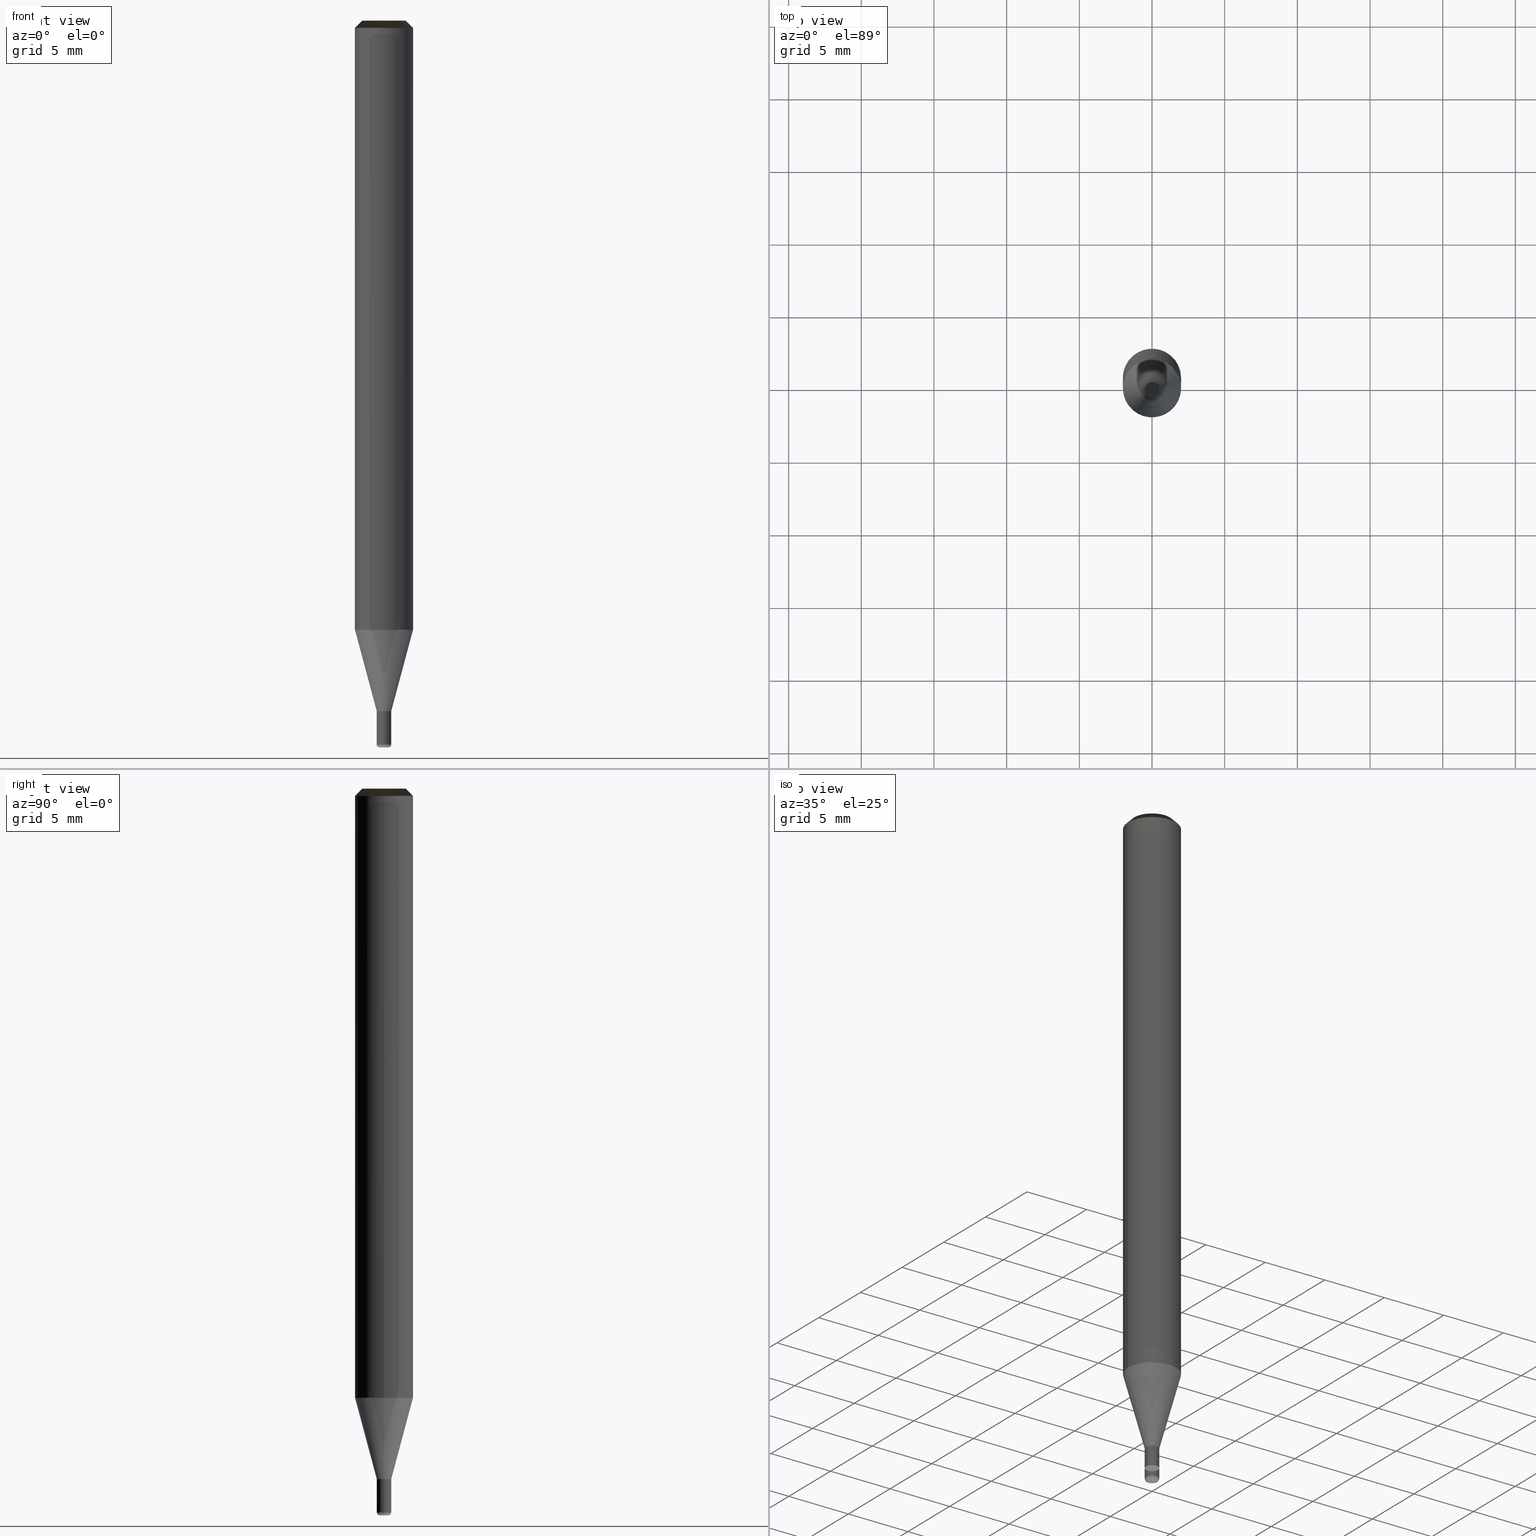
[diagram: canonical four-view strip — front | top / right | iso, engineering-drawing reading convention]
A machine part, canonical four-view strip (front | top / right | iso — engineering-drawing reading convention). The complete STEP part file that produces these views, byte-faithful:
ISO-10303-21;
HEADER;
/* Generated by ISBE GmbH (www.isbe.de) */
/* OPTION: using custom schema-name function */

FILE_DESCRIPTION(
/* description */ (''),
/* implementation_level */ '2;1');

FILE_NAME(
/*name*/ 'SHRF-4010-R002-025-STH',
/*time_stamp*/'2024-3-13T8:45:51',
/*author*/ ('ISBE GmbH'),
/*organization*/ ('ISBE GmbH'),
/*preprocessor_version*/ 'STEP IO v1.0',
/*originating_system*/ '',
/*authorisation*/ '');

FILE_SCHEMA (('AUTOMOTIVE_DESIGN'));
ENDSEC;

DATA;
#10=SHAPE_DEFINITION_REPRESENTATION(#11,#57);
#11=PRODUCT_DEFINITION_SHAPE('Document','',#13);
#12=PRODUCT_DEFINITION_CONTEXT('3D Mechanical Parts',#17,'design');
#13=PRODUCT_DEFINITION('A','First version',#14,#12);
#14=PRODUCT_DEFINITION_FORMATION_WITH_SPECIFIED_SOURCE('A','First version',#19,.MADE.);
#15=PRODUCT_RELATED_PRODUCT_CATEGORY('tool','tool',(#19));
#16=APPLICATION_PROTOCOL_DEFINITION('Draft International Standard', 'automotive_design',1999,#17);
#17=APPLICATION_CONTEXT('data for automotive mechanical design processes');
#18=PRODUCT_CONTEXT('3D Mechanical Parts',#17,'mechanical');
#19=PRODUCT('Document','Document','ISBE converted to STEP',(#18));
#20=(
LENGTH_UNIT()
NAMED_UNIT(*)
SI_UNIT(.MILLI.,.METRE.)
);
#21=(
NAMED_UNIT(*)
PLANE_ANGLE_UNIT()
SI_UNIT($,.RADIAN.)
);
#22=DIMENSIONAL_EXPONENTS(0.,0.,0.,0.,0.,0.,0.);
#23=PLANE_ANGLE_MEASURE_WITH_UNIT(PLANE_ANGLE_MEASURE(0.01745329252),#21);
#24=(
CONVERSION_BASED_UNIT('DEGREES',#23)
NAMED_UNIT(#22)
PLANE_ANGLE_UNIT()
);
#25=(
NAMED_UNIT(*)
SI_UNIT($,.STERADIAN.)
SOLID_ANGLE_UNIT()
);
#26=UNCERTAINTY_MEASURE_WITH_UNIT(LENGTH_MEASURE(0.001),#20, 'DISTANCE_ACCURACY_VALUE', 'Maximum model space distance between geometric entities at asserted connectivities');
#27=(
GEOMETRIC_REPRESENTATION_CONTEXT(3)
GLOBAL_UNCERTAINTY_ASSIGNED_CONTEXT((#26))
GLOBAL_UNIT_ASSIGNED_CONTEXT((#25,#24,#20))
REPRESENTATION_CONTEXT('ID1','3D')
);
#28=CARTESIAN_POINT('',(0.0,0.0,0.0));
#29=DIRECTION('',(1.0,0.0,0.0));
#30=DIRECTION('',(0.0,0.0,1.0));
#31=AXIS2_PLACEMENT_3D('',#28,#30,#29);
#32=CARTESIAN_POINT('',(0.0,0.0,0.0));
#33=DIRECTION('',(1.0,0.0,0.0));
#34=DIRECTION('',(0.0,0.0,1.0));
#35=AXIS2_PLACEMENT_3D('',#32,#34,#33);
#36=CARTESIAN_POINT('',(0.0,0.0,0.0));
#37=DIRECTION('',(1.0,0.0,0.0));
#38=DIRECTION('',(0.0,0.0,1.0));
#39=AXIS2_PLACEMENT_3D('',#36,#38,#37);
#40=CARTESIAN_POINT('',(0.0,0.0,0.0));
#41=DIRECTION('',(0.0,0.0,1.0));
#42=DIRECTION('',(1.0,0.0,0.0));
#43=AXIS2_PLACEMENT_3D('MCS',#40,#42,#41);
#44=CARTESIAN_POINT('',(0.0,0.0,41.901923788647));
#45=DIRECTION('',(0.0,0.0,1.0));
#46=DIRECTION('',(1.0,0.0,0.0));
#47=AXIS2_PLACEMENT_3D('PCS',#44,#46,#45);
#48=CARTESIAN_POINT('',(0.0,0.0,-8.098076211353));
#49=DIRECTION('',(0.0,0.0,1.0));
#50=DIRECTION('',(1.0,0.0,0.0));
#51=AXIS2_PLACEMENT_3D('CIP',#48,#50,#49);
#52=CARTESIAN_POINT('',(0.0,-0.5,-8.098076211353));
#53=DIRECTION('',(0.0,0.0,1.0));
#54=DIRECTION('',(1.0,0.0,0.0));
#55=AXIS2_PLACEMENT_3D('CRP',#52,#54,#53);
#57=SHAPE_REPRESENTATION('Document',(#31,#35,#39,#43,#47,#51,#55),#27);
#58=DIRECTION('',(1.0,0.0,0.0));
#59=DIRECTION('',(0.0,0.0,1.0));
#60=CARTESIAN_POINT('',(-0.004965711473,-0.000584559297,-8.098076211353));
#61=CARTESIAN_POINT('',(-0.001831248808,-0.027211177496,-8.098076211353));
#62=CARTESIAN_POINT('',(0.001384450217,-0.054527881943,-8.098076211353));
#63=CARTESIAN_POINT('',(0.004581926052,-0.081689784121,-8.098076211353));
#64=CARTESIAN_POINT('',(0.007774906356,-0.10881349768,-8.098076211353));
#65=CARTESIAN_POINT('',(0.01096609428,-0.135921985339,-8.098076211353));
#66=CARTESIAN_POINT('',(0.014156387208,-0.163022870191,-8.098076211353));
#67=CARTESIAN_POINT('',(0.017346169059,-0.190119413556,-8.098076211353));
#68=CARTESIAN_POINT('',(0.020535631616,-0.217213244576,-8.098076211353));
#69=CARTESIAN_POINT('',(0.023724881364,-0.244305267828,-8.098076211353));
#70=CARTESIAN_POINT('',(0.026913982171,-0.271396025861,-8.098076211353));
#71=CARTESIAN_POINT('',(0.030102974671,-0.298485863846,-8.098076211353));
#72=CARTESIAN_POINT('',(0.030837532657,-0.304725783452,-8.097977523426));
#73=CARTESIAN_POINT('',(0.031571361711,-0.310959510929,-8.097681557039));
#74=CARTESIAN_POINT('',(0.032303737886,-0.317180896496,-8.097188604274));
#75=CARTESIAN_POINT('',(0.033033938659,-0.323383802473,-8.096499151616));
#76=CARTESIAN_POINT('',(0.033761243644,-0.329562109331,-8.095613879472));
#77=CARTESIAN_POINT('',(0.034484935306,-0.335709721738,-8.094533661499));
#78=CARTESIAN_POINT('',(0.035204299662,-0.341820574576,-8.093259563741));
#79=CARTESIAN_POINT('',(0.035918626995,-0.347888638926,-8.091792843579));
#80=CARTESIAN_POINT('',(0.036627212546,-0.353907928021,-8.090134948489));
#81=CARTESIAN_POINT('',(0.037329357217,-0.359872503155,-8.088287514612));
#82=CARTESIAN_POINT('',(0.038024368256,-0.365776479551,-8.086252365144));
#83=CARTESIAN_POINT('',(0.038711559944,-0.371614032163,-8.084031508531));
#84=CARTESIAN_POINT('',(0.039390254271,-0.377379401433,-8.08162713649));
#85=CARTESIAN_POINT('',(0.040059781605,-0.383066898975,-8.079041621847));
#86=CARTESIAN_POINT('',(0.040719481354,-0.388670913192,-8.076277516191));
#87=CARTESIAN_POINT('',(0.041368702616,-0.394185914812,-8.073337547362));
#88=CARTESIAN_POINT('',(0.042006804825,-0.399606462356,-8.070224616754));
#89=CARTESIAN_POINT('',(0.042633158381,-0.404927207499,-8.066941796454));
#90=CARTESIAN_POINT('',(0.043247145272,-0.410142900358,-8.063492326208));
#91=CARTESIAN_POINT('',(0.043848159686,-0.415248394675,-8.059879610228));
#92=CARTESIAN_POINT('',(0.044435608604,-0.42023865289,-8.056107213828));
#93=CARTESIAN_POINT('',(0.045008912393,-0.425108751125,-8.052178859908));
#94=CARTESIAN_POINT('',(0.04556750537,-0.429853884037,-8.048098425279));
#95=CARTESIAN_POINT('',(0.046110836369,-0.434469369565,-8.043869936838));
#96=CARTESIAN_POINT('',(0.046638369278,-0.438950653552,-8.039497567591));
#97=CARTESIAN_POINT('',(0.047149583571,-0.44329331424,-8.034985632539));
#98=CARTESIAN_POINT('',(0.047643974822,-0.447493066639,-8.030338584418));
#99=CARTESIAN_POINT('',(0.048121055204,-0.451545766751,-8.025561009303));
#100=CARTESIAN_POINT('',(0.048580353969,-0.455447415666,-8.020657622084));
#101=CARTESIAN_POINT('',(0.049021417912,-0.459194163506,-8.015633261812));
#102=CARTESIAN_POINT('',(0.049443811821,-0.462782313231,-8.010492886924));
#103=CARTESIAN_POINT('',(0.049847118905,-0.466208324281,-8.005241570349));
#104=CARTESIAN_POINT('',(0.050230941203,-0.469468816077,-7.999884494503));
#105=CARTESIAN_POINT('',(0.050594899984,-0.472560571356,-7.994426946174));
#106=CARTESIAN_POINT('',(0.050938636112,-0.475480539349,-7.988874311301));
#107=CARTESIAN_POINT('',(0.051261810408,-0.478225838788,-7.983232069666));
#108=CARTESIAN_POINT('',(0.051564103981,-0.480793760755,-7.97750578948));
#109=CARTESIAN_POINT('',(0.051845218541,-0.483181771355,-7.97170112189));
#110=CARTESIAN_POINT('',(0.052104876699,-0.485387514213,-7.965823795402));
#111=CARTESIAN_POINT('',(0.052342822236,-0.487408812808,-7.959879610228));
#112=CARTESIAN_POINT('',(0.05255882036,-0.489243672615,-7.953874432561));
#113=CARTESIAN_POINT('',(0.052752657931,-0.490890283075,-7.947814188786));
#114=CARTESIAN_POINT('',(0.05292414368,-0.492347019385,-7.941704859633));
#115=CARTESIAN_POINT('',(0.053073108393,-0.4936124441,-7.93555247427));
#116=CARTESIAN_POINT('',(0.053199405076,-0.494685308552,-7.929363104361));
#117=CARTESIAN_POINT('',(0.053302909106,-0.495564554081,-7.923142858066));
#118=CARTESIAN_POINT('',(0.053383518349,-0.496249313083,-7.916897874017));
#119=CARTESIAN_POINT('',(0.053441153262,-0.496738909867,-7.910634315259));
#120=CARTESIAN_POINT('',(0.053475756975,-0.497032861316,-7.904358363169));
#121=CARTESIAN_POINT('',(0.053487295341,-0.497130877372,-7.898076211353));
#122=CARTESIAN_POINT('',(0.072817163452,-0.494669243745,-7.825348938626));
#123=CARTESIAN_POINT('',(0.092036435853,-0.49145629966,-7.752621665899));
#124=CARTESIAN_POINT('',(0.111115922049,-0.487496924982,-7.679894393172));
#125=CARTESIAN_POINT('',(0.130026643852,-0.482797133265,-7.607167120444));
#126=CARTESIAN_POINT('',(0.148739879399,-0.477364062615,-7.534439847717));
#127=CARTESIAN_POINT('',(0.16722720677,-0.471205964856,-7.46171257499));
#128=CARTESIAN_POINT('',(0.185460547157,-0.464332192992,-7.388985302262));
#129=CARTESIAN_POINT('',(0.203412207512,-0.456753187001,-7.316258029535));
#130=CARTESIAN_POINT('',(0.221054922606,-0.448480457982,-7.243530756808));
#131=CARTESIAN_POINT('',(0.238361896441,-0.43952657067,-7.170803484081));
#132=CARTESIAN_POINT('',(0.255306842947,-0.429905124353,-7.098076211353));
#133=CARTESIAN_POINT('',(0.000584559297,-0.004965711473,-8.098076211353));
#134=CARTESIAN_POINT('',(0.027211177496,-0.001831248808,-8.098076211353));
#135=CARTESIAN_POINT('',(0.054527881943,0.001384450217,-8.098076211353));
#136=CARTESIAN_POINT('',(0.081689784121,0.004581926052,-8.098076211353));
#137=CARTESIAN_POINT('',(0.10881349768,0.007774906356,-8.098076211353));
#138=CARTESIAN_POINT('',(0.135921985339,0.01096609428,-8.098076211353));
#139=CARTESIAN_POINT('',(0.163022870191,0.014156387208,-8.098076211353));
#140=CARTESIAN_POINT('',(0.190119413556,0.017346169059,-8.098076211353));
#141=CARTESIAN_POINT('',(0.217213244576,0.020535631616,-8.098076211353));
#142=CARTESIAN_POINT('',(0.244305267828,0.023724881364,-8.098076211353));
#143=CARTESIAN_POINT('',(0.271396025861,0.026913982171,-8.098076211353));
#144=CARTESIAN_POINT('',(0.298485863846,0.030102974671,-8.098076211353));
#145=CARTESIAN_POINT('',(0.304725783452,0.030837532657,-8.097977523426));
#146=CARTESIAN_POINT('',(0.310959510929,0.031571361711,-8.097681557039));
#147=CARTESIAN_POINT('',(0.317180896496,0.032303737886,-8.097188604274));
#148=CARTESIAN_POINT('',(0.323383802473,0.033033938659,-8.096499151616));
#149=CARTESIAN_POINT('',(0.329562109331,0.033761243644,-8.095613879472));
#150=CARTESIAN_POINT('',(0.335709721738,0.034484935306,-8.094533661499));
#151=CARTESIAN_POINT('',(0.341820574576,0.035204299662,-8.093259563741));
#152=CARTESIAN_POINT('',(0.347888638926,0.035918626995,-8.091792843579));
#153=CARTESIAN_POINT('',(0.353907928021,0.036627212546,-8.090134948489));
#154=CARTESIAN_POINT('',(0.359872503155,0.037329357217,-8.088287514612));
#155=CARTESIAN_POINT('',(0.365776479551,0.038024368256,-8.086252365144));
#156=CARTESIAN_POINT('',(0.371614032163,0.038711559944,-8.084031508531));
#157=CARTESIAN_POINT('',(0.377379401433,0.039390254271,-8.08162713649));
#158=CARTESIAN_POINT('',(0.383066898975,0.040059781605,-8.079041621847));
#159=CARTESIAN_POINT('',(0.388670913192,0.040719481354,-8.076277516191));
#160=CARTESIAN_POINT('',(0.394185914812,0.041368702616,-8.073337547362));
#161=CARTESIAN_POINT('',(0.399606462356,0.042006804825,-8.070224616754));
#162=CARTESIAN_POINT('',(0.404927207499,0.042633158381,-8.066941796454));
#163=CARTESIAN_POINT('',(0.410142900358,0.043247145272,-8.063492326208));
#164=CARTESIAN_POINT('',(0.415248394675,0.043848159686,-8.059879610228));
#165=CARTESIAN_POINT('',(0.42023865289,0.044435608604,-8.056107213828));
#166=CARTESIAN_POINT('',(0.425108751125,0.045008912393,-8.052178859908));
#167=CARTESIAN_POINT('',(0.429853884037,0.04556750537,-8.048098425279));
#168=CARTESIAN_POINT('',(0.434469369565,0.046110836369,-8.043869936838));
#169=CARTESIAN_POINT('',(0.438950653552,0.046638369278,-8.039497567591));
#170=CARTESIAN_POINT('',(0.44329331424,0.047149583571,-8.034985632539));
#171=CARTESIAN_POINT('',(0.447493066639,0.047643974822,-8.030338584418));
#172=CARTESIAN_POINT('',(0.451545766751,0.048121055204,-8.025561009303));
#173=CARTESIAN_POINT('',(0.455447415666,0.048580353969,-8.020657622084));
#174=CARTESIAN_POINT('',(0.459194163506,0.049021417912,-8.015633261812));
#175=CARTESIAN_POINT('',(0.462782313231,0.049443811821,-8.010492886924));
#176=CARTESIAN_POINT('',(0.466208324281,0.049847118905,-8.005241570349));
#177=CARTESIAN_POINT('',(0.469468816077,0.050230941203,-7.999884494503));
#178=CARTESIAN_POINT('',(0.472560571356,0.050594899984,-7.994426946174));
#179=CARTESIAN_POINT('',(0.475480539349,0.050938636112,-7.988874311301));
#180=CARTESIAN_POINT('',(0.478225838788,0.051261810408,-7.983232069666));
#181=CARTESIAN_POINT('',(0.480793760755,0.051564103981,-7.97750578948));
#182=CARTESIAN_POINT('',(0.483181771355,0.051845218541,-7.97170112189));
#183=CARTESIAN_POINT('',(0.485387514213,0.052104876699,-7.965823795402));
#184=CARTESIAN_POINT('',(0.487408812808,0.052342822236,-7.959879610228));
#185=CARTESIAN_POINT('',(0.489243672615,0.05255882036,-7.953874432561));
#186=CARTESIAN_POINT('',(0.490890283075,0.052752657931,-7.947814188786));
#187=CARTESIAN_POINT('',(0.492347019385,0.05292414368,-7.941704859633));
#188=CARTESIAN_POINT('',(0.4936124441,0.053073108393,-7.93555247427));
#189=CARTESIAN_POINT('',(0.494685308552,0.053199405076,-7.929363104361));
#190=CARTESIAN_POINT('',(0.495564554081,0.053302909106,-7.923142858066));
#191=CARTESIAN_POINT('',(0.496249313083,0.053383518349,-7.916897874017));
#192=CARTESIAN_POINT('',(0.496738909867,0.053441153262,-7.910634315259));
#193=CARTESIAN_POINT('',(0.497032861316,0.053475756975,-7.904358363169));
#194=CARTESIAN_POINT('',(0.497130877372,0.053487295341,-7.898076211353));
#195=CARTESIAN_POINT('',(0.494669243745,0.072817163452,-7.825348938626));
#196=CARTESIAN_POINT('',(0.49145629966,0.092036435853,-7.752621665899));
#197=CARTESIAN_POINT('',(0.487496924982,0.111115922049,-7.679894393172));
#198=CARTESIAN_POINT('',(0.482797133265,0.130026643852,-7.607167120444));
#199=CARTESIAN_POINT('',(0.477364062615,0.148739879399,-7.534439847717));
#200=CARTESIAN_POINT('',(0.471205964856,0.16722720677,-7.46171257499));
#201=CARTESIAN_POINT('',(0.464332192992,0.185460547157,-7.388985302262));
#202=CARTESIAN_POINT('',(0.456753187001,0.203412207512,-7.316258029535));
#203=CARTESIAN_POINT('',(0.448480457982,0.221054922606,-7.243530756808));
#204=CARTESIAN_POINT('',(0.43952657067,0.238361896441,-7.170803484081));
#205=CARTESIAN_POINT('',(0.429905124353,0.255306842947,-7.098076211353));
#206=CARTESIAN_POINT('',(0.004965711473,0.000584559297,-8.098076211353));
#207=CARTESIAN_POINT('',(0.001831248808,0.027211177496,-8.098076211353));
#208=CARTESIAN_POINT('',(-0.001384450217,0.054527881943,-8.098076211353));
#209=CARTESIAN_POINT('',(-0.004581926052,0.081689784121,-8.098076211353));
#210=CARTESIAN_POINT('',(-0.007774906356,0.10881349768,-8.098076211353));
#211=CARTESIAN_POINT('',(-0.01096609428,0.135921985339,-8.098076211353));
#212=CARTESIAN_POINT('',(-0.014156387208,0.163022870191,-8.098076211353));
#213=CARTESIAN_POINT('',(-0.017346169059,0.190119413556,-8.098076211353));
#214=CARTESIAN_POINT('',(-0.020535631616,0.217213244576,-8.098076211353));
#215=CARTESIAN_POINT('',(-0.023724881364,0.244305267828,-8.098076211353));
#216=CARTESIAN_POINT('',(-0.026913982171,0.271396025861,-8.098076211353));
#217=CARTESIAN_POINT('',(-0.030102974671,0.298485863846,-8.098076211353));
#218=CARTESIAN_POINT('',(-0.030837532657,0.304725783452,-8.097977523426));
#219=CARTESIAN_POINT('',(-0.031571361711,0.310959510929,-8.097681557039));
#220=CARTESIAN_POINT('',(-0.032303737886,0.317180896496,-8.097188604274));
#221=CARTESIAN_POINT('',(-0.033033938659,0.323383802473,-8.096499151616));
#222=CARTESIAN_POINT('',(-0.033761243644,0.329562109331,-8.095613879472));
#223=CARTESIAN_POINT('',(-0.034484935306,0.335709721738,-8.094533661499));
#224=CARTESIAN_POINT('',(-0.035204299662,0.341820574576,-8.093259563741));
#225=CARTESIAN_POINT('',(-0.035918626995,0.347888638926,-8.091792843579));
#226=CARTESIAN_POINT('',(-0.036627212546,0.353907928021,-8.090134948489));
#227=CARTESIAN_POINT('',(-0.037329357217,0.359872503155,-8.088287514612));
#228=CARTESIAN_POINT('',(-0.038024368256,0.365776479551,-8.086252365144));
#229=CARTESIAN_POINT('',(-0.038711559944,0.371614032163,-8.084031508531));
#230=CARTESIAN_POINT('',(-0.039390254271,0.377379401433,-8.08162713649));
#231=CARTESIAN_POINT('',(-0.040059781605,0.383066898975,-8.079041621847));
#232=CARTESIAN_POINT('',(-0.040719481354,0.388670913192,-8.076277516191));
#233=CARTESIAN_POINT('',(-0.041368702616,0.394185914812,-8.073337547362));
#234=CARTESIAN_POINT('',(-0.042006804825,0.399606462356,-8.070224616754));
#235=CARTESIAN_POINT('',(-0.042633158381,0.404927207499,-8.066941796454));
#236=CARTESIAN_POINT('',(-0.043247145272,0.410142900358,-8.063492326208));
#237=CARTESIAN_POINT('',(-0.043848159686,0.415248394675,-8.059879610228));
#238=CARTESIAN_POINT('',(-0.044435608604,0.42023865289,-8.056107213828));
#239=CARTESIAN_POINT('',(-0.045008912393,0.425108751125,-8.052178859908));
#240=CARTESIAN_POINT('',(-0.04556750537,0.429853884037,-8.048098425279));
#241=CARTESIAN_POINT('',(-0.046110836369,0.434469369565,-8.043869936838));
#242=CARTESIAN_POINT('',(-0.046638369278,0.438950653552,-8.039497567591));
#243=CARTESIAN_POINT('',(-0.047149583571,0.44329331424,-8.034985632539));
#244=CARTESIAN_POINT('',(-0.047643974822,0.447493066639,-8.030338584418));
#245=CARTESIAN_POINT('',(-0.048121055204,0.451545766751,-8.025561009303));
#246=CARTESIAN_POINT('',(-0.048580353969,0.455447415666,-8.020657622084));
#247=CARTESIAN_POINT('',(-0.049021417912,0.459194163506,-8.015633261812));
#248=CARTESIAN_POINT('',(-0.049443811821,0.462782313231,-8.010492886924));
#249=CARTESIAN_POINT('',(-0.049847118905,0.466208324281,-8.005241570349));
#250=CARTESIAN_POINT('',(-0.050230941203,0.469468816077,-7.999884494503));
#251=CARTESIAN_POINT('',(-0.050594899984,0.472560571356,-7.994426946174));
#252=CARTESIAN_POINT('',(-0.050938636112,0.475480539349,-7.988874311301));
#253=CARTESIAN_POINT('',(-0.051261810408,0.478225838788,-7.983232069666));
#254=CARTESIAN_POINT('',(-0.051564103981,0.480793760755,-7.97750578948));
#255=CARTESIAN_POINT('',(-0.051845218541,0.483181771355,-7.97170112189));
#256=CARTESIAN_POINT('',(-0.052104876699,0.485387514213,-7.965823795402));
#257=CARTESIAN_POINT('',(-0.052342822236,0.487408812808,-7.959879610228));
#258=CARTESIAN_POINT('',(-0.05255882036,0.489243672615,-7.953874432561));
#259=CARTESIAN_POINT('',(-0.052752657931,0.490890283075,-7.947814188786));
#260=CARTESIAN_POINT('',(-0.05292414368,0.492347019385,-7.941704859633));
#261=CARTESIAN_POINT('',(-0.053073108393,0.4936124441,-7.93555247427));
#262=CARTESIAN_POINT('',(-0.053199405076,0.494685308552,-7.929363104361));
#263=CARTESIAN_POINT('',(-0.053302909106,0.495564554081,-7.923142858066));
#264=CARTESIAN_POINT('',(-0.053383518349,0.496249313083,-7.916897874017));
#265=CARTESIAN_POINT('',(-0.053441153262,0.496738909867,-7.910634315259));
#266=CARTESIAN_POINT('',(-0.053475756975,0.497032861316,-7.904358363169));
#267=CARTESIAN_POINT('',(-0.053487295341,0.497130877372,-7.898076211353));
#268=CARTESIAN_POINT('',(-0.072817163452,0.494669243745,-7.825348938626));
#269=CARTESIAN_POINT('',(-0.092036435853,0.49145629966,-7.752621665899));
#270=CARTESIAN_POINT('',(-0.111115922049,0.487496924982,-7.679894393172));
#271=CARTESIAN_POINT('',(-0.130026643852,0.482797133265,-7.607167120444));
#272=CARTESIAN_POINT('',(-0.148739879399,0.477364062615,-7.534439847717));
#273=CARTESIAN_POINT('',(-0.16722720677,0.471205964856,-7.46171257499));
#274=CARTESIAN_POINT('',(-0.185460547157,0.464332192992,-7.388985302262));
#275=CARTESIAN_POINT('',(-0.203412207512,0.456753187001,-7.316258029535));
#276=CARTESIAN_POINT('',(-0.221054922606,0.448480457982,-7.243530756808));
#277=CARTESIAN_POINT('',(-0.238361896441,0.43952657067,-7.170803484081));
#278=CARTESIAN_POINT('',(-0.255306842947,0.429905124353,-7.098076211353));
#279=CARTESIAN_POINT('',(-0.000584559297,0.004965711473,-8.098076211353));
#280=CARTESIAN_POINT('',(-0.027211177496,0.001831248808,-8.098076211353));
#281=CARTESIAN_POINT('',(-0.054527881943,-0.001384450217,-8.098076211353));
#282=CARTESIAN_POINT('',(-0.081689784121,-0.004581926052,-8.098076211353));
#283=CARTESIAN_POINT('',(-0.10881349768,-0.007774906356,-8.098076211353));
#284=CARTESIAN_POINT('',(-0.135921985339,-0.01096609428,-8.098076211353));
#285=CARTESIAN_POINT('',(-0.163022870191,-0.014156387208,-8.098076211353));
#286=CARTESIAN_POINT('',(-0.190119413556,-0.017346169059,-8.098076211353));
#287=CARTESIAN_POINT('',(-0.217213244576,-0.020535631616,-8.098076211353));
#288=CARTESIAN_POINT('',(-0.244305267828,-0.023724881364,-8.098076211353));
#289=CARTESIAN_POINT('',(-0.271396025861,-0.026913982171,-8.098076211353));
#290=CARTESIAN_POINT('',(-0.298485863846,-0.030102974671,-8.098076211353));
#291=CARTESIAN_POINT('',(-0.304725783452,-0.030837532657,-8.097977523426));
#292=CARTESIAN_POINT('',(-0.310959510929,-0.031571361711,-8.097681557039));
#293=CARTESIAN_POINT('',(-0.317180896496,-0.032303737886,-8.097188604274));
#294=CARTESIAN_POINT('',(-0.323383802473,-0.033033938659,-8.096499151616));
#295=CARTESIAN_POINT('',(-0.329562109331,-0.033761243644,-8.095613879472));
#296=CARTESIAN_POINT('',(-0.335709721738,-0.034484935306,-8.094533661499));
#297=CARTESIAN_POINT('',(-0.341820574576,-0.035204299662,-8.093259563741));
#298=CARTESIAN_POINT('',(-0.347888638926,-0.035918626995,-8.091792843579));
#299=CARTESIAN_POINT('',(-0.353907928021,-0.036627212546,-8.090134948489));
#300=CARTESIAN_POINT('',(-0.359872503155,-0.037329357217,-8.088287514612));
#301=CARTESIAN_POINT('',(-0.365776479551,-0.038024368256,-8.086252365144));
#302=CARTESIAN_POINT('',(-0.371614032163,-0.038711559944,-8.084031508531));
#303=CARTESIAN_POINT('',(-0.377379401433,-0.039390254271,-8.08162713649));
#304=CARTESIAN_POINT('',(-0.383066898975,-0.040059781605,-8.079041621847));
#305=CARTESIAN_POINT('',(-0.388670913192,-0.040719481354,-8.076277516191));
#306=CARTESIAN_POINT('',(-0.394185914812,-0.041368702616,-8.073337547362));
#307=CARTESIAN_POINT('',(-0.399606462356,-0.042006804825,-8.070224616754));
#308=CARTESIAN_POINT('',(-0.404927207499,-0.042633158381,-8.066941796454));
#309=CARTESIAN_POINT('',(-0.410142900358,-0.043247145272,-8.063492326208));
#310=CARTESIAN_POINT('',(-0.415248394675,-0.043848159686,-8.059879610228));
#311=CARTESIAN_POINT('',(-0.42023865289,-0.044435608604,-8.056107213828));
#312=CARTESIAN_POINT('',(-0.425108751125,-0.045008912393,-8.052178859908));
#313=CARTESIAN_POINT('',(-0.429853884037,-0.04556750537,-8.048098425279));
#314=CARTESIAN_POINT('',(-0.434469369565,-0.046110836369,-8.043869936838));
#315=CARTESIAN_POINT('',(-0.438950653552,-0.046638369278,-8.039497567591));
#316=CARTESIAN_POINT('',(-0.44329331424,-0.047149583571,-8.034985632539));
#317=CARTESIAN_POINT('',(-0.447493066639,-0.047643974822,-8.030338584418));
#318=CARTESIAN_POINT('',(-0.451545766751,-0.048121055204,-8.025561009303));
#319=CARTESIAN_POINT('',(-0.455447415666,-0.048580353969,-8.020657622084));
#320=CARTESIAN_POINT('',(-0.459194163506,-0.049021417912,-8.015633261812));
#321=CARTESIAN_POINT('',(-0.462782313231,-0.049443811821,-8.010492886924));
#322=CARTESIAN_POINT('',(-0.466208324281,-0.049847118905,-8.005241570349));
#323=CARTESIAN_POINT('',(-0.469468816077,-0.050230941203,-7.999884494503));
#324=CARTESIAN_POINT('',(-0.472560571356,-0.050594899984,-7.994426946174));
#325=CARTESIAN_POINT('',(-0.475480539349,-0.050938636112,-7.988874311301));
#326=CARTESIAN_POINT('',(-0.478225838788,-0.051261810408,-7.983232069666));
#327=CARTESIAN_POINT('',(-0.480793760755,-0.051564103981,-7.97750578948));
#328=CARTESIAN_POINT('',(-0.483181771355,-0.051845218541,-7.97170112189));
#329=CARTESIAN_POINT('',(-0.485387514213,-0.052104876699,-7.965823795402));
#330=CARTESIAN_POINT('',(-0.487408812808,-0.052342822236,-7.959879610228));
#331=CARTESIAN_POINT('',(-0.489243672615,-0.05255882036,-7.953874432561));
#332=CARTESIAN_POINT('',(-0.490890283075,-0.052752657931,-7.947814188786));
#333=CARTESIAN_POINT('',(-0.492347019385,-0.05292414368,-7.941704859633));
#334=CARTESIAN_POINT('',(-0.4936124441,-0.053073108393,-7.93555247427));
#335=CARTESIAN_POINT('',(-0.494685308552,-0.053199405076,-7.929363104361));
#336=CARTESIAN_POINT('',(-0.495564554081,-0.053302909106,-7.923142858066));
#337=CARTESIAN_POINT('',(-0.496249313083,-0.053383518349,-7.916897874017));
#338=CARTESIAN_POINT('',(-0.496738909867,-0.053441153262,-7.910634315259));
#339=CARTESIAN_POINT('',(-0.497032861316,-0.053475756975,-7.904358363169));
#340=CARTESIAN_POINT('',(-0.497130877372,-0.053487295341,-7.898076211353));
#341=CARTESIAN_POINT('',(-0.494669243745,-0.072817163452,-7.825348938626));
#342=CARTESIAN_POINT('',(-0.49145629966,-0.092036435853,-7.752621665899));
#343=CARTESIAN_POINT('',(-0.487496924982,-0.111115922049,-7.679894393172));
#344=CARTESIAN_POINT('',(-0.482797133265,-0.130026643852,-7.607167120444));
#345=CARTESIAN_POINT('',(-0.477364062615,-0.148739879399,-7.534439847717));
#346=CARTESIAN_POINT('',(-0.471205964856,-0.16722720677,-7.46171257499));
#347=CARTESIAN_POINT('',(-0.464332192992,-0.185460547157,-7.388985302262));
#348=CARTESIAN_POINT('',(-0.456753187001,-0.203412207512,-7.316258029535));
#349=CARTESIAN_POINT('',(-0.448480457982,-0.221054922606,-7.243530756808));
#350=CARTESIAN_POINT('',(-0.43952657067,-0.238361896441,-7.170803484081));
#351=CARTESIAN_POINT('',(-0.429905124353,-0.255306842947,-7.098076211353));
#352=CARTESIAN_POINT('',(0.0,0.0,-8.098076211353));
#353=CARTESIAN_POINT('',(0.3,0.0,-8.098076211353));
#354=CARTESIAN_POINT('',(0.3,0.3,-8.098076211353));
#355=CARTESIAN_POINT('',(0.0,0.3,-8.098076211353));
#356=CARTESIAN_POINT('',(-0.3,0.3,-8.098076211353));
#357=CARTESIAN_POINT('',(-0.3,0.0,-8.098076211353));
#358=CARTESIAN_POINT('',(0.5,0.0,-8.098076211353));
#359=CARTESIAN_POINT('',(0.5,0.5,-8.098076211353));
#360=CARTESIAN_POINT('',(0.0,0.5,-8.098076211353));
#361=CARTESIAN_POINT('',(-0.5,0.5,-8.098076211353));
#362=CARTESIAN_POINT('',(-0.5,0.0,-8.098076211353));
#363=CARTESIAN_POINT('',(0.5,0.0,-7.898076211353));
#364=CARTESIAN_POINT('',(0.5,0.5,-7.898076211353));
#365=CARTESIAN_POINT('',(0.0,0.5,-7.898076211353));
#366=CARTESIAN_POINT('',(-0.5,0.5,-7.898076211353));
#367=CARTESIAN_POINT('',(-0.5,0.0,-7.898076211353));
#368=CARTESIAN_POINT('',(0.5,0.0,-7.098076211353));
#369=CARTESIAN_POINT('',(0.5,0.5,-7.098076211353));
#370=CARTESIAN_POINT('',(0.0,0.5,-7.098076211353));
#371=CARTESIAN_POINT('',(-0.5,0.5,-7.098076211353));
#372=CARTESIAN_POINT('',(-0.5,0.0,-7.098076211353));
#373=CARTESIAN_POINT('',(0.0,0.0,-7.098076211353));
#374=CARTESIAN_POINT('',(-0.3,-0.3,-8.098076211353));
#375=CARTESIAN_POINT('',(0.0,-0.3,-8.098076211353));
#376=CARTESIAN_POINT('',(0.3,-0.3,-8.098076211353));
#377=CARTESIAN_POINT('',(-0.5,-0.5,-8.098076211353));
#378=CARTESIAN_POINT('',(0.0,-0.5,-8.098076211353));
#379=CARTESIAN_POINT('',(0.5,-0.5,-8.098076211353));
#380=CARTESIAN_POINT('',(-0.5,-0.5,-7.898076211353));
#381=CARTESIAN_POINT('',(0.0,-0.5,-7.898076211353));
#382=CARTESIAN_POINT('',(0.5,-0.5,-7.898076211353));
#383=CARTESIAN_POINT('',(-0.5,-0.5,-7.098076211353));
#384=CARTESIAN_POINT('',(0.0,-0.5,-7.098076211353));
#385=CARTESIAN_POINT('',(0.5,-0.5,-7.098076211353));
#386=CARTESIAN_POINT('',(0.5,0.0,-5.598076211353));
#387=CARTESIAN_POINT('',(0.5,0.5,-5.598076211353));
#388=CARTESIAN_POINT('',(0.0,0.5,-5.598076211353));
#389=CARTESIAN_POINT('',(-0.5,0.5,-5.598076211353));
#390=CARTESIAN_POINT('',(-0.5,0.0,-5.598076211353));
#391=CARTESIAN_POINT('',(2.0,0.0,-0.0));
#392=CARTESIAN_POINT('',(2.0,2.0,-0.0));
#393=CARTESIAN_POINT('',(0.0,2.0,-0.0));
#394=CARTESIAN_POINT('',(-2.0,2.0,-0.0));
#395=CARTESIAN_POINT('',(-2.0,0.0,-0.0));
#396=CARTESIAN_POINT('',(2.0,0.0,41.401923788647));
#397=CARTESIAN_POINT('',(2.0,2.0,41.401923788647));
#398=CARTESIAN_POINT('',(0.0,2.0,41.401923788647));
#399=CARTESIAN_POINT('',(-2.0,2.0,41.401923788647));
#400=CARTESIAN_POINT('',(-2.0,0.0,41.401923788647));
#401=CARTESIAN_POINT('',(1.5,0.0,41.901923788647));
#402=CARTESIAN_POINT('',(1.5,1.5,41.901923788647));
#403=CARTESIAN_POINT('',(0.0,1.5,41.901923788647));
#404=CARTESIAN_POINT('',(-1.5,1.5,41.901923788647));
#405=CARTESIAN_POINT('',(-1.5,0.0,41.901923788647));
#406=CARTESIAN_POINT('',(0.0,0.0,41.901923788647));
#407=CARTESIAN_POINT('',(-0.5,-0.5,-5.598076211353));
#408=CARTESIAN_POINT('',(0.0,-0.5,-5.598076211353));
#409=CARTESIAN_POINT('',(0.5,-0.5,-5.598076211353));
#410=CARTESIAN_POINT('',(-2.0,-2.0,-0.0));
#411=CARTESIAN_POINT('',(0.0,-2.0,-0.0));
#412=CARTESIAN_POINT('',(2.0,-2.0,-0.0));
#413=CARTESIAN_POINT('',(-2.0,-2.0,41.401923788647));
#414=CARTESIAN_POINT('',(0.0,-2.0,41.401923788647));
#415=CARTESIAN_POINT('',(2.0,-2.0,41.401923788647));
#416=CARTESIAN_POINT('',(-1.5,-1.5,41.901923788647));
#417=CARTESIAN_POINT('',(0.0,-1.5,41.901923788647));
#418=CARTESIAN_POINT('',(1.5,-1.5,41.901923788647));
#419=(
BOUNDED_CURVE()
B_SPLINE_CURVE(1,(#60,#61,#62,#63,#64,#65,#66,#67,#68,#69,#70,#71,#72,#73,#74,#75,#76,#77,#78,#79,#80,#81,#82,#83,#84,#85,#86,#87,#88,#89,#90,#91,#92,#93,#94,#95,#96,#97,#98,#99,#100,#101,#102,#103,#104,#105,#106,#107,#108,#109,#110,#111,#112,#113,#114,#115,#116,#117,#118,#119,#120,#121,#122,#123,#124,#125,#126,#127,#128,#129,#130,#131,#132),.UNSPECIFIED.,.F.,.F.)
B_SPLINE_CURVE_WITH_KNOTS((2,1,1,1,1,1,1,1,1,1,1,1,1,1,1,1,1,1,1,1,1,1,1,1,1,1,1,1,1,1,1,1,1,1,1,1,1,1,1,1,1,1,1,1,1,1,1,1,1,1,1,1,1,1,1,1,1,1,1,1,1,1,1,1,1,1,1,1,1,1,1,1,2),
(0.0,0.018588230589,0.037658215272,0.056620131395,0.075555387773,0.094480014842,0.113399334338,0.132315623011,0.151230018177,0.170143151327,0.189055401219,0.207967008819,0.212323678179,0.216680322602,0.221036942545,0.22539353849,0.229750110947,0.234106660447,0.238463187535,0.242819692774,0.247176176733,0.251532639992,0.255889083134,0.260245506748,0.264601911422,0.268958297746,0.273314666308,0.277671017694,0.282027352485,0.286383671261,0.290739974594,0.295096263053,0.299452537201,0.303808797593,0.30816504478,0.312521279305,0.316877501705,0.32123371251,0.325589912244,0.329946101424,0.334302280561,0.338658450157,0.343014610712,0.347370762717,0.351726906658,0.356083043015,0.360439172263,0.364795294872,0.369151411307,0.373507522029,0.377863627493,0.382219728152,0.386575824454,0.390931916846,0.395288005768,0.39964409166,0.40400017496,0.408356256103,0.412712335522,0.41706841365,0.421424490917,0.425780567754,0.477982334322,0.53018410089,0.582385867457,0.634587634025,0.686789400593,0.738991167161,0.791192933729,0.843394700297,0.895596466864,0.947798233432,1.0),.UNSPECIFIED.)
CURVE()
GEOMETRIC_REPRESENTATION_ITEM()
RATIONAL_B_SPLINE_CURVE((1.0,1.0,1.0,1.0,1.0,1.0,1.0,1.0,1.0,1.0,1.0,1.0,1.0,1.0,1.0,1.0,1.0,1.0,1.0,1.0,1.0,1.0,1.0,1.0,1.0,1.0,1.0,1.0,1.0,1.0,1.0,1.0,1.0,1.0,1.0,1.0,1.0,1.0,1.0,1.0,1.0,1.0,1.0,1.0,1.0,1.0,1.0,1.0,1.0,1.0,1.0,1.0,1.0,1.0,1.0,1.0,1.0,1.0,1.0,1.0,1.0,1.0,1.0,1.0,1.0,1.0,1.0,1.0,1.0,1.0,1.0,1.0,1.0))
REPRESENTATION_ITEM('')
);
#420=(
BOUNDED_CURVE()
B_SPLINE_CURVE(1,(#133,#134,#135,#136,#137,#138,#139,#140,#141,#142,#143,#144,#145,#146,#147,#148,#149,#150,#151,#152,#153,#154,#155,#156,#157,#158,#159,#160,#161,#162,#163,#164,#165,#166,#167,#168,#169,#170,#171,#172,#173,#174,#175,#176,#177,#178,#179,#180,#181,#182,#183,#184,#185,#186,#187,#188,#189,#190,#191,#192,#193,#194,#195,#196,#197,#198,#199,#200,#201,#202,#203,#204,#205),.UNSPECIFIED.,.F.,.F.)
B_SPLINE_CURVE_WITH_KNOTS((2,1,1,1,1,1,1,1,1,1,1,1,1,1,1,1,1,1,1,1,1,1,1,1,1,1,1,1,1,1,1,1,1,1,1,1,1,1,1,1,1,1,1,1,1,1,1,1,1,1,1,1,1,1,1,1,1,1,1,1,1,1,1,1,1,1,1,1,1,1,1,1,2),
(0.0,0.018588230589,0.037658215272,0.056620131395,0.075555387773,0.094480014842,0.113399334338,0.132315623011,0.151230018177,0.170143151327,0.189055401219,0.207967008819,0.212323678179,0.216680322602,0.221036942545,0.22539353849,0.229750110947,0.234106660447,0.238463187535,0.242819692774,0.247176176733,0.251532639992,0.255889083134,0.260245506748,0.264601911422,0.268958297746,0.273314666308,0.277671017694,0.282027352485,0.286383671261,0.290739974594,0.295096263053,0.299452537201,0.303808797593,0.30816504478,0.312521279305,0.316877501705,0.32123371251,0.325589912244,0.329946101424,0.334302280561,0.338658450157,0.343014610712,0.347370762717,0.351726906658,0.356083043015,0.360439172263,0.364795294872,0.369151411307,0.373507522029,0.377863627493,0.382219728152,0.386575824454,0.390931916846,0.395288005768,0.39964409166,0.40400017496,0.408356256103,0.412712335522,0.41706841365,0.421424490917,0.425780567754,0.477982334322,0.53018410089,0.582385867457,0.634587634025,0.686789400593,0.738991167161,0.791192933729,0.843394700297,0.895596466864,0.947798233432,1.0),.UNSPECIFIED.)
CURVE()
GEOMETRIC_REPRESENTATION_ITEM()
RATIONAL_B_SPLINE_CURVE((1.0,1.0,1.0,1.0,1.0,1.0,1.0,1.0,1.0,1.0,1.0,1.0,1.0,1.0,1.0,1.0,1.0,1.0,1.0,1.0,1.0,1.0,1.0,1.0,1.0,1.0,1.0,1.0,1.0,1.0,1.0,1.0,1.0,1.0,1.0,1.0,1.0,1.0,1.0,1.0,1.0,1.0,1.0,1.0,1.0,1.0,1.0,1.0,1.0,1.0,1.0,1.0,1.0,1.0,1.0,1.0,1.0,1.0,1.0,1.0,1.0,1.0,1.0,1.0,1.0,1.0,1.0,1.0,1.0,1.0,1.0,1.0,1.0))
REPRESENTATION_ITEM('')
);
#421=(
BOUNDED_CURVE()
B_SPLINE_CURVE(1,(#206,#207,#208,#209,#210,#211,#212,#213,#214,#215,#216,#217,#218,#219,#220,#221,#222,#223,#224,#225,#226,#227,#228,#229,#230,#231,#232,#233,#234,#235,#236,#237,#238,#239,#240,#241,#242,#243,#244,#245,#246,#247,#248,#249,#250,#251,#252,#253,#254,#255,#256,#257,#258,#259,#260,#261,#262,#263,#264,#265,#266,#267,#268,#269,#270,#271,#272,#273,#274,#275,#276,#277,#278),.UNSPECIFIED.,.F.,.F.)
B_SPLINE_CURVE_WITH_KNOTS((2,1,1,1,1,1,1,1,1,1,1,1,1,1,1,1,1,1,1,1,1,1,1,1,1,1,1,1,1,1,1,1,1,1,1,1,1,1,1,1,1,1,1,1,1,1,1,1,1,1,1,1,1,1,1,1,1,1,1,1,1,1,1,1,1,1,1,1,1,1,1,1,2),
(0.0,0.018588230589,0.037658215272,0.056620131395,0.075555387773,0.094480014842,0.113399334338,0.132315623011,0.151230018177,0.170143151327,0.189055401219,0.207967008819,0.212323678179,0.216680322602,0.221036942545,0.22539353849,0.229750110947,0.234106660447,0.238463187535,0.242819692774,0.247176176733,0.251532639992,0.255889083134,0.260245506748,0.264601911422,0.268958297746,0.273314666308,0.277671017694,0.282027352485,0.286383671261,0.290739974594,0.295096263053,0.299452537201,0.303808797593,0.30816504478,0.312521279305,0.316877501705,0.32123371251,0.325589912244,0.329946101424,0.334302280561,0.338658450157,0.343014610712,0.347370762717,0.351726906658,0.356083043015,0.360439172263,0.364795294872,0.369151411307,0.373507522029,0.377863627493,0.382219728152,0.386575824454,0.390931916846,0.395288005768,0.39964409166,0.40400017496,0.408356256103,0.412712335522,0.41706841365,0.421424490917,0.425780567754,0.477982334322,0.53018410089,0.582385867457,0.634587634025,0.686789400593,0.738991167161,0.791192933729,0.843394700297,0.895596466864,0.947798233432,1.0),.UNSPECIFIED.)
CURVE()
GEOMETRIC_REPRESENTATION_ITEM()
RATIONAL_B_SPLINE_CURVE((1.0,1.0,1.0,1.0,1.0,1.0,1.0,1.0,1.0,1.0,1.0,1.0,1.0,1.0,1.0,1.0,1.0,1.0,1.0,1.0,1.0,1.0,1.0,1.0,1.0,1.0,1.0,1.0,1.0,1.0,1.0,1.0,1.0,1.0,1.0,1.0,1.0,1.0,1.0,1.0,1.0,1.0,1.0,1.0,1.0,1.0,1.0,1.0,1.0,1.0,1.0,1.0,1.0,1.0,1.0,1.0,1.0,1.0,1.0,1.0,1.0,1.0,1.0,1.0,1.0,1.0,1.0,1.0,1.0,1.0,1.0,1.0,1.0))
REPRESENTATION_ITEM('')
);
#422=(
BOUNDED_CURVE()
B_SPLINE_CURVE(1,(#279,#280,#281,#282,#283,#284,#285,#286,#287,#288,#289,#290,#291,#292,#293,#294,#295,#296,#297,#298,#299,#300,#301,#302,#303,#304,#305,#306,#307,#308,#309,#310,#311,#312,#313,#314,#315,#316,#317,#318,#319,#320,#321,#322,#323,#324,#325,#326,#327,#328,#329,#330,#331,#332,#333,#334,#335,#336,#337,#338,#339,#340,#341,#342,#343,#344,#345,#346,#347,#348,#349,#350,#351),.UNSPECIFIED.,.F.,.F.)
B_SPLINE_CURVE_WITH_KNOTS((2,1,1,1,1,1,1,1,1,1,1,1,1,1,1,1,1,1,1,1,1,1,1,1,1,1,1,1,1,1,1,1,1,1,1,1,1,1,1,1,1,1,1,1,1,1,1,1,1,1,1,1,1,1,1,1,1,1,1,1,1,1,1,1,1,1,1,1,1,1,1,1,2),
(0.0,0.018588230589,0.037658215272,0.056620131395,0.075555387773,0.094480014842,0.113399334338,0.132315623011,0.151230018177,0.170143151327,0.189055401219,0.207967008819,0.212323678179,0.216680322602,0.221036942545,0.22539353849,0.229750110947,0.234106660447,0.238463187535,0.242819692774,0.247176176733,0.251532639992,0.255889083134,0.260245506748,0.264601911422,0.268958297746,0.273314666308,0.277671017694,0.282027352485,0.286383671261,0.290739974594,0.295096263053,0.299452537201,0.303808797593,0.30816504478,0.312521279305,0.316877501705,0.32123371251,0.325589912244,0.329946101424,0.334302280561,0.338658450157,0.343014610712,0.347370762717,0.351726906658,0.356083043015,0.360439172263,0.364795294872,0.369151411307,0.373507522029,0.377863627493,0.382219728152,0.386575824454,0.390931916846,0.395288005768,0.39964409166,0.40400017496,0.408356256103,0.412712335522,0.41706841365,0.421424490917,0.425780567754,0.477982334322,0.53018410089,0.582385867457,0.634587634025,0.686789400593,0.738991167161,0.791192933729,0.843394700297,0.895596466864,0.947798233432,1.0),.UNSPECIFIED.)
CURVE()
GEOMETRIC_REPRESENTATION_ITEM()
RATIONAL_B_SPLINE_CURVE((1.0,1.0,1.0,1.0,1.0,1.0,1.0,1.0,1.0,1.0,1.0,1.0,1.0,1.0,1.0,1.0,1.0,1.0,1.0,1.0,1.0,1.0,1.0,1.0,1.0,1.0,1.0,1.0,1.0,1.0,1.0,1.0,1.0,1.0,1.0,1.0,1.0,1.0,1.0,1.0,1.0,1.0,1.0,1.0,1.0,1.0,1.0,1.0,1.0,1.0,1.0,1.0,1.0,1.0,1.0,1.0,1.0,1.0,1.0,1.0,1.0,1.0,1.0,1.0,1.0,1.0,1.0,1.0,1.0,1.0,1.0,1.0,1.0))
REPRESENTATION_ITEM('')
);
#423=SHAPE_REPRESENTATION_RELATIONSHIP('','',#57,#424);
#424=GEOMETRICALLY_BOUNDED_WIREFRAME_SHAPE_REPRESENTATION('Curves',(#425,#31),#27);
#425=GEOMETRIC_CURVE_SET('CurveSet',(#419,#420,#421,#422));
#426=(
BOUNDED_SURFACE()
B_SPLINE_SURFACE(1,2,(
(#352,#352,#352,#352,#352),
(#353,#354,#355,#356,#357)
), .UNSPECIFIED.,.F.,.F.,.F.)
B_SPLINE_SURFACE_WITH_KNOTS((2,2),(3,2,3),(
0.0,1.0),(
0.0,0.5,1.0), .UNSPECIFIED.)
GEOMETRIC_REPRESENTATION_ITEM()
RATIONAL_B_SPLINE_SURFACE(((1.0,0.707106781187,1.0,0.707106781187,1.0),
(1.0,0.707106781187,1.0,0.707106781187,1.0)
))
REPRESENTATION_ITEM('')
SURFACE()
);
#427=(
BOUNDED_CURVE()
B_SPLINE_CURVE(2,(#353,#354,#355,#356,#357),.UNSPECIFIED.,.F.,.F.)
B_SPLINE_CURVE_WITH_KNOTS((3,2,3),
(0.0,0.5,1.0),.UNSPECIFIED.)
CURVE()
GEOMETRIC_REPRESENTATION_ITEM()
RATIONAL_B_SPLINE_CURVE((1.0,0.707106781187,1.0,0.707106781187,1.0))
REPRESENTATION_ITEM('')
);
#428=(
BOUNDED_CURVE()
B_SPLINE_CURVE(1,(#357,#352),.UNSPECIFIED.,.F.,.F.)
B_SPLINE_CURVE_WITH_KNOTS((2,2),
(0.0,1.0),.UNSPECIFIED.)
CURVE()
GEOMETRIC_REPRESENTATION_ITEM()
RATIONAL_B_SPLINE_CURVE((1.0,1.0))
REPRESENTATION_ITEM('')
);
#429=(
BOUNDED_CURVE()
B_SPLINE_CURVE(1,(#352,#353),.UNSPECIFIED.,.F.,.F.)
B_SPLINE_CURVE_WITH_KNOTS((2,2),
(0.0,1.0),.UNSPECIFIED.)
CURVE()
GEOMETRIC_REPRESENTATION_ITEM()
RATIONAL_B_SPLINE_CURVE((1.0,1.0))
REPRESENTATION_ITEM('')
);
#430=VERTEX_POINT('',#352);
#431=VERTEX_POINT('',#353);
#432=VERTEX_POINT('',#357);
#433=EDGE_CURVE('',#431,#432,#427,.T.);
#434=EDGE_CURVE('',#432,#430,#428,.T.);
#435=EDGE_CURVE('',#430,#431,#429,.T.);
#436=ORIENTED_EDGE('',*,*,#433,.T.);
#437=ORIENTED_EDGE('',*,*,#434,.T.);
#438=ORIENTED_EDGE('',*,*,#435,.T.);
#439=EDGE_LOOP('',(#436,#437,#438));
#440=FACE_OUTER_BOUND('',#439,.T.);
#441=ADVANCED_FACE('',(#440),#426,.T.);
#442=(
BOUNDED_SURFACE()
B_SPLINE_SURFACE(2,2,(
(#353,#354,#355,#356,#357),
(#358,#359,#360,#361,#362),
(#363,#364,#365,#366,#367)
), .UNSPECIFIED.,.F.,.F.,.F.)
B_SPLINE_SURFACE_WITH_KNOTS((3,3),(3,2,3),(
0.0,1.0),(
0.0,0.5,1.0), .UNSPECIFIED.)
GEOMETRIC_REPRESENTATION_ITEM()
RATIONAL_B_SPLINE_SURFACE(((1.0,0.707106781187,1.0,0.707106781187,1.0),
(0.707106781187,0.5,0.707106781187,0.5,0.707106781187),
(1.0,0.707106781187,1.0,0.707106781187,1.0)
))
REPRESENTATION_ITEM('')
SURFACE()
);
#443=(
BOUNDED_CURVE()
B_SPLINE_CURVE(2,(#363,#364,#365,#366,#367),.UNSPECIFIED.,.F.,.F.)
B_SPLINE_CURVE_WITH_KNOTS((3,2,3),
(0.0,0.5,1.0),.UNSPECIFIED.)
CURVE()
GEOMETRIC_REPRESENTATION_ITEM()
RATIONAL_B_SPLINE_CURVE((1.0,0.707106781187,1.0,0.707106781187,1.0))
REPRESENTATION_ITEM('')
);
#444=(
BOUNDED_CURVE()
B_SPLINE_CURVE(2,(#367,#362,#357),.UNSPECIFIED.,.F.,.F.)
B_SPLINE_CURVE_WITH_KNOTS((3,3),
(0.0,1.0),.UNSPECIFIED.)
CURVE()
GEOMETRIC_REPRESENTATION_ITEM()
RATIONAL_B_SPLINE_CURVE((1.0,0.707106781187,1.0))
REPRESENTATION_ITEM('')
);
#445=(
BOUNDED_CURVE()
B_SPLINE_CURVE(2,(#357,#356,#355,#354,#353),.UNSPECIFIED.,.F.,.F.)
B_SPLINE_CURVE_WITH_KNOTS((3,2,3),
(0.0,0.5,1.0),.UNSPECIFIED.)
CURVE()
GEOMETRIC_REPRESENTATION_ITEM()
RATIONAL_B_SPLINE_CURVE((1.0,0.707106781187,1.0,0.707106781187,1.0))
REPRESENTATION_ITEM('')
);
#446=(
BOUNDED_CURVE()
B_SPLINE_CURVE(2,(#353,#358,#363),.UNSPECIFIED.,.F.,.F.)
B_SPLINE_CURVE_WITH_KNOTS((3,3),
(0.0,1.0),.UNSPECIFIED.)
CURVE()
GEOMETRIC_REPRESENTATION_ITEM()
RATIONAL_B_SPLINE_CURVE((1.0,0.707106781187,1.0))
REPRESENTATION_ITEM('')
);
#447=VERTEX_POINT('',#353);
#448=VERTEX_POINT('',#357);
#449=VERTEX_POINT('',#363);
#450=VERTEX_POINT('',#367);
#451=EDGE_CURVE('',#449,#450,#443,.T.);
#452=EDGE_CURVE('',#450,#448,#444,.T.);
#453=EDGE_CURVE('',#448,#447,#445,.T.);
#454=EDGE_CURVE('',#447,#449,#446,.T.);
#455=ORIENTED_EDGE('',*,*,#451,.T.);
#456=ORIENTED_EDGE('',*,*,#452,.T.);
#457=ORIENTED_EDGE('',*,*,#453,.T.);
#458=ORIENTED_EDGE('',*,*,#454,.T.);
#459=EDGE_LOOP('',(#455,#456,#457,#458));
#460=FACE_OUTER_BOUND('',#459,.T.);
#461=ADVANCED_FACE('',(#460),#442,.T.);
#462=(
BOUNDED_SURFACE()
B_SPLINE_SURFACE(1,2,(
(#363,#364,#365,#366,#367),
(#368,#369,#370,#371,#372)
), .UNSPECIFIED.,.F.,.F.,.F.)
B_SPLINE_SURFACE_WITH_KNOTS((2,2),(3,2,3),(
0.0,1.0),(
0.0,0.5,1.0), .UNSPECIFIED.)
GEOMETRIC_REPRESENTATION_ITEM()
RATIONAL_B_SPLINE_SURFACE(((1.0,0.707106781187,1.0,0.707106781187,1.0),
(1.0,0.707106781187,1.0,0.707106781187,1.0)
))
REPRESENTATION_ITEM('')
SURFACE()
);
#463=(
BOUNDED_CURVE()
B_SPLINE_CURVE(2,(#368,#369,#370,#371,#372),.UNSPECIFIED.,.F.,.F.)
B_SPLINE_CURVE_WITH_KNOTS((3,2,3),
(0.0,0.5,1.0),.UNSPECIFIED.)
CURVE()
GEOMETRIC_REPRESENTATION_ITEM()
RATIONAL_B_SPLINE_CURVE((1.0,0.707106781187,1.0,0.707106781187,1.0))
REPRESENTATION_ITEM('')
);
#464=(
BOUNDED_CURVE()
B_SPLINE_CURVE(1,(#372,#367),.UNSPECIFIED.,.F.,.F.)
B_SPLINE_CURVE_WITH_KNOTS((2,2),
(0.0,1.0),.UNSPECIFIED.)
CURVE()
GEOMETRIC_REPRESENTATION_ITEM()
RATIONAL_B_SPLINE_CURVE((1.0,1.0))
REPRESENTATION_ITEM('')
);
#465=(
BOUNDED_CURVE()
B_SPLINE_CURVE(2,(#367,#366,#365,#364,#363),.UNSPECIFIED.,.F.,.F.)
B_SPLINE_CURVE_WITH_KNOTS((3,2,3),
(0.0,0.5,1.0),.UNSPECIFIED.)
CURVE()
GEOMETRIC_REPRESENTATION_ITEM()
RATIONAL_B_SPLINE_CURVE((1.0,0.707106781187,1.0,0.707106781187,1.0))
REPRESENTATION_ITEM('')
);
#466=(
BOUNDED_CURVE()
B_SPLINE_CURVE(1,(#363,#368),.UNSPECIFIED.,.F.,.F.)
B_SPLINE_CURVE_WITH_KNOTS((2,2),
(0.0,1.0),.UNSPECIFIED.)
CURVE()
GEOMETRIC_REPRESENTATION_ITEM()
RATIONAL_B_SPLINE_CURVE((1.0,1.0))
REPRESENTATION_ITEM('')
);
#467=VERTEX_POINT('',#363);
#468=VERTEX_POINT('',#367);
#469=VERTEX_POINT('',#368);
#470=VERTEX_POINT('',#372);
#471=EDGE_CURVE('',#469,#470,#463,.T.);
#472=EDGE_CURVE('',#470,#468,#464,.T.);
#473=EDGE_CURVE('',#468,#467,#465,.T.);
#474=EDGE_CURVE('',#467,#469,#466,.T.);
#475=ORIENTED_EDGE('',*,*,#471,.T.);
#476=ORIENTED_EDGE('',*,*,#472,.T.);
#477=ORIENTED_EDGE('',*,*,#473,.T.);
#478=ORIENTED_EDGE('',*,*,#474,.T.);
#479=EDGE_LOOP('',(#475,#476,#477,#478));
#480=FACE_OUTER_BOUND('',#479,.T.);
#481=ADVANCED_FACE('',(#480),#462,.T.);
#482=(
BOUNDED_SURFACE()
B_SPLINE_SURFACE(1,2,(
(#368,#369,#370,#371,#372),
(#373,#373,#373,#373,#373)
), .UNSPECIFIED.,.F.,.F.,.F.)
B_SPLINE_SURFACE_WITH_KNOTS((2,2),(3,2,3),(
0.0,1.0),(
0.0,0.5,1.0), .UNSPECIFIED.)
GEOMETRIC_REPRESENTATION_ITEM()
RATIONAL_B_SPLINE_SURFACE(((1.0,0.707106781187,1.0,0.707106781187,1.0),
(1.0,0.707106781187,1.0,0.707106781187,1.0)
))
REPRESENTATION_ITEM('')
SURFACE()
);
#483=(
BOUNDED_CURVE()
B_SPLINE_CURVE(1,(#373,#368),.UNSPECIFIED.,.F.,.F.)
B_SPLINE_CURVE_WITH_KNOTS((2,2),
(0.0,1.0),.UNSPECIFIED.)
CURVE()
GEOMETRIC_REPRESENTATION_ITEM()
RATIONAL_B_SPLINE_CURVE((1.0,1.0))
REPRESENTATION_ITEM('')
);
#484=(
BOUNDED_CURVE()
B_SPLINE_CURVE(2,(#368,#369,#370,#371,#372),.UNSPECIFIED.,.F.,.F.)
B_SPLINE_CURVE_WITH_KNOTS((3,2,3),
(0.0,0.5,1.0),.UNSPECIFIED.)
CURVE()
GEOMETRIC_REPRESENTATION_ITEM()
RATIONAL_B_SPLINE_CURVE((1.0,0.707106781187,1.0,0.707106781187,1.0))
REPRESENTATION_ITEM('')
);
#485=(
BOUNDED_CURVE()
B_SPLINE_CURVE(1,(#372,#373),.UNSPECIFIED.,.F.,.F.)
B_SPLINE_CURVE_WITH_KNOTS((2,2),
(0.0,1.0),.UNSPECIFIED.)
CURVE()
GEOMETRIC_REPRESENTATION_ITEM()
RATIONAL_B_SPLINE_CURVE((1.0,1.0))
REPRESENTATION_ITEM('')
);
#486=VERTEX_POINT('',#368);
#487=VERTEX_POINT('',#372);
#488=VERTEX_POINT('',#373);
#489=EDGE_CURVE('',#488,#486,#483,.T.);
#490=EDGE_CURVE('',#486,#487,#484,.T.);
#491=EDGE_CURVE('',#487,#488,#485,.T.);
#492=ORIENTED_EDGE('',*,*,#489,.T.);
#493=ORIENTED_EDGE('',*,*,#490,.T.);
#494=ORIENTED_EDGE('',*,*,#491,.T.);
#495=EDGE_LOOP('',(#492,#493,#494));
#496=FACE_OUTER_BOUND('',#495,.T.);
#497=ADVANCED_FACE('',(#496),#482,.T.);
#498=(
BOUNDED_SURFACE()
B_SPLINE_SURFACE(1,2,(
(#352,#352,#352,#352,#352),
(#357,#374,#375,#376,#353)
), .UNSPECIFIED.,.F.,.F.,.F.)
B_SPLINE_SURFACE_WITH_KNOTS((2,2),(3,2,3),(
0.0,1.0),(
0.0,0.5,1.0), .UNSPECIFIED.)
GEOMETRIC_REPRESENTATION_ITEM()
RATIONAL_B_SPLINE_SURFACE(((1.0,0.707106781187,1.0,0.707106781187,1.0),
(1.0,0.707106781187,1.0,0.707106781187,1.0)
))
REPRESENTATION_ITEM('')
SURFACE()
);
#499=(
BOUNDED_CURVE()
B_SPLINE_CURVE(1,(#357,#352),.UNSPECIFIED.,.F.,.F.)
B_SPLINE_CURVE_WITH_KNOTS((2,2),
(0.0,1.0),.UNSPECIFIED.)
CURVE()
GEOMETRIC_REPRESENTATION_ITEM()
RATIONAL_B_SPLINE_CURVE((1.0,1.0))
REPRESENTATION_ITEM('')
);
#500=(
BOUNDED_CURVE()
B_SPLINE_CURVE(1,(#352,#353),.UNSPECIFIED.,.F.,.F.)
B_SPLINE_CURVE_WITH_KNOTS((2,2),
(0.0,1.0),.UNSPECIFIED.)
CURVE()
GEOMETRIC_REPRESENTATION_ITEM()
RATIONAL_B_SPLINE_CURVE((1.0,1.0))
REPRESENTATION_ITEM('')
);
#501=(
BOUNDED_CURVE()
B_SPLINE_CURVE(2,(#353,#376,#375,#374,#357),.UNSPECIFIED.,.F.,.F.)
B_SPLINE_CURVE_WITH_KNOTS((3,2,3),
(0.0,0.5,1.0),.UNSPECIFIED.)
CURVE()
GEOMETRIC_REPRESENTATION_ITEM()
RATIONAL_B_SPLINE_CURVE((1.0,0.707106781187,1.0,0.707106781187,1.0))
REPRESENTATION_ITEM('')
);
#502=VERTEX_POINT('',#352);
#503=VERTEX_POINT('',#353);
#504=VERTEX_POINT('',#357);
#505=EDGE_CURVE('',#504,#502,#499,.T.);
#506=EDGE_CURVE('',#502,#503,#500,.T.);
#507=EDGE_CURVE('',#503,#504,#501,.T.);
#508=ORIENTED_EDGE('',*,*,#505,.T.);
#509=ORIENTED_EDGE('',*,*,#506,.T.);
#510=ORIENTED_EDGE('',*,*,#507,.T.);
#511=EDGE_LOOP('',(#508,#509,#510));
#512=FACE_OUTER_BOUND('',#511,.T.);
#513=ADVANCED_FACE('',(#512),#498,.T.);
#514=(
BOUNDED_SURFACE()
B_SPLINE_SURFACE(2,2,(
(#357,#374,#375,#376,#353),
(#362,#377,#378,#379,#358),
(#367,#380,#381,#382,#363)
), .UNSPECIFIED.,.F.,.F.,.F.)
B_SPLINE_SURFACE_WITH_KNOTS((3,3),(3,2,3),(
0.0,1.0),(
0.0,0.5,1.0), .UNSPECIFIED.)
GEOMETRIC_REPRESENTATION_ITEM()
RATIONAL_B_SPLINE_SURFACE(((1.0,0.707106781187,1.0,0.707106781187,1.0),
(0.707106781187,0.5,0.707106781187,0.5,0.707106781187),
(1.0,0.707106781187,1.0,0.707106781187,1.0)
))
REPRESENTATION_ITEM('')
SURFACE()
);
#515=(
BOUNDED_CURVE()
B_SPLINE_CURVE(2,(#367,#362,#357),.UNSPECIFIED.,.F.,.F.)
B_SPLINE_CURVE_WITH_KNOTS((3,3),
(0.0,1.0),.UNSPECIFIED.)
CURVE()
GEOMETRIC_REPRESENTATION_ITEM()
RATIONAL_B_SPLINE_CURVE((1.0,0.707106781187,1.0))
REPRESENTATION_ITEM('')
);
#516=(
BOUNDED_CURVE()
B_SPLINE_CURVE(2,(#357,#374,#375,#376,#353),.UNSPECIFIED.,.F.,.F.)
B_SPLINE_CURVE_WITH_KNOTS((3,2,3),
(0.0,0.5,1.0),.UNSPECIFIED.)
CURVE()
GEOMETRIC_REPRESENTATION_ITEM()
RATIONAL_B_SPLINE_CURVE((1.0,0.707106781187,1.0,0.707106781187,1.0))
REPRESENTATION_ITEM('')
);
#517=(
BOUNDED_CURVE()
B_SPLINE_CURVE(2,(#353,#358,#363),.UNSPECIFIED.,.F.,.F.)
B_SPLINE_CURVE_WITH_KNOTS((3,3),
(0.0,1.0),.UNSPECIFIED.)
CURVE()
GEOMETRIC_REPRESENTATION_ITEM()
RATIONAL_B_SPLINE_CURVE((1.0,0.707106781187,1.0))
REPRESENTATION_ITEM('')
);
#518=(
BOUNDED_CURVE()
B_SPLINE_CURVE(2,(#363,#382,#381,#380,#367),.UNSPECIFIED.,.F.,.F.)
B_SPLINE_CURVE_WITH_KNOTS((3,2,3),
(0.0,0.5,1.0),.UNSPECIFIED.)
CURVE()
GEOMETRIC_REPRESENTATION_ITEM()
RATIONAL_B_SPLINE_CURVE((1.0,0.707106781187,1.0,0.707106781187,1.0))
REPRESENTATION_ITEM('')
);
#519=VERTEX_POINT('',#353);
#520=VERTEX_POINT('',#357);
#521=VERTEX_POINT('',#363);
#522=VERTEX_POINT('',#367);
#523=EDGE_CURVE('',#522,#520,#515,.T.);
#524=EDGE_CURVE('',#520,#519,#516,.T.);
#525=EDGE_CURVE('',#519,#521,#517,.T.);
#526=EDGE_CURVE('',#521,#522,#518,.T.);
#527=ORIENTED_EDGE('',*,*,#523,.T.);
#528=ORIENTED_EDGE('',*,*,#524,.T.);
#529=ORIENTED_EDGE('',*,*,#525,.T.);
#530=ORIENTED_EDGE('',*,*,#526,.T.);
#531=EDGE_LOOP('',(#527,#528,#529,#530));
#532=FACE_OUTER_BOUND('',#531,.T.);
#533=ADVANCED_FACE('',(#532),#514,.T.);
#534=(
BOUNDED_SURFACE()
B_SPLINE_SURFACE(1,2,(
(#367,#380,#381,#382,#363),
(#372,#383,#384,#385,#368)
), .UNSPECIFIED.,.F.,.F.,.F.)
B_SPLINE_SURFACE_WITH_KNOTS((2,2),(3,2,3),(
0.0,1.0),(
0.0,0.5,1.0), .UNSPECIFIED.)
GEOMETRIC_REPRESENTATION_ITEM()
RATIONAL_B_SPLINE_SURFACE(((1.0,0.707106781187,1.0,0.707106781187,1.0),
(1.0,0.707106781187,1.0,0.707106781187,1.0)
))
REPRESENTATION_ITEM('')
SURFACE()
);
#535=(
BOUNDED_CURVE()
B_SPLINE_CURVE(1,(#372,#367),.UNSPECIFIED.,.F.,.F.)
B_SPLINE_CURVE_WITH_KNOTS((2,2),
(0.0,1.0),.UNSPECIFIED.)
CURVE()
GEOMETRIC_REPRESENTATION_ITEM()
RATIONAL_B_SPLINE_CURVE((1.0,1.0))
REPRESENTATION_ITEM('')
);
#536=(
BOUNDED_CURVE()
B_SPLINE_CURVE(2,(#367,#380,#381,#382,#363),.UNSPECIFIED.,.F.,.F.)
B_SPLINE_CURVE_WITH_KNOTS((3,2,3),
(0.0,0.5,1.0),.UNSPECIFIED.)
CURVE()
GEOMETRIC_REPRESENTATION_ITEM()
RATIONAL_B_SPLINE_CURVE((1.0,0.707106781187,1.0,0.707106781187,1.0))
REPRESENTATION_ITEM('')
);
#537=(
BOUNDED_CURVE()
B_SPLINE_CURVE(1,(#363,#368),.UNSPECIFIED.,.F.,.F.)
B_SPLINE_CURVE_WITH_KNOTS((2,2),
(0.0,1.0),.UNSPECIFIED.)
CURVE()
GEOMETRIC_REPRESENTATION_ITEM()
RATIONAL_B_SPLINE_CURVE((1.0,1.0))
REPRESENTATION_ITEM('')
);
#538=(
BOUNDED_CURVE()
B_SPLINE_CURVE(2,(#368,#385,#384,#383,#372),.UNSPECIFIED.,.F.,.F.)
B_SPLINE_CURVE_WITH_KNOTS((3,2,3),
(0.0,0.5,1.0),.UNSPECIFIED.)
CURVE()
GEOMETRIC_REPRESENTATION_ITEM()
RATIONAL_B_SPLINE_CURVE((1.0,0.707106781187,1.0,0.707106781187,1.0))
REPRESENTATION_ITEM('')
);
#539=VERTEX_POINT('',#363);
#540=VERTEX_POINT('',#367);
#541=VERTEX_POINT('',#368);
#542=VERTEX_POINT('',#372);
#543=EDGE_CURVE('',#542,#540,#535,.T.);
#544=EDGE_CURVE('',#540,#539,#536,.T.);
#545=EDGE_CURVE('',#539,#541,#537,.T.);
#546=EDGE_CURVE('',#541,#542,#538,.T.);
#547=ORIENTED_EDGE('',*,*,#543,.T.);
#548=ORIENTED_EDGE('',*,*,#544,.T.);
#549=ORIENTED_EDGE('',*,*,#545,.T.);
#550=ORIENTED_EDGE('',*,*,#546,.T.);
#551=EDGE_LOOP('',(#547,#548,#549,#550));
#552=FACE_OUTER_BOUND('',#551,.T.);
#553=ADVANCED_FACE('',(#552),#534,.T.);
#554=(
BOUNDED_SURFACE()
B_SPLINE_SURFACE(1,2,(
(#372,#383,#384,#385,#368),
(#373,#373,#373,#373,#373)
), .UNSPECIFIED.,.F.,.F.,.F.)
B_SPLINE_SURFACE_WITH_KNOTS((2,2),(3,2,3),(
0.0,1.0),(
0.0,0.5,1.0), .UNSPECIFIED.)
GEOMETRIC_REPRESENTATION_ITEM()
RATIONAL_B_SPLINE_SURFACE(((1.0,0.707106781187,1.0,0.707106781187,1.0),
(1.0,0.707106781187,1.0,0.707106781187,1.0)
))
REPRESENTATION_ITEM('')
SURFACE()
);
#555=(
BOUNDED_CURVE()
B_SPLINE_CURVE(1,(#373,#368),.UNSPECIFIED.,.F.,.F.)
B_SPLINE_CURVE_WITH_KNOTS((2,2),
(0.0,1.0),.UNSPECIFIED.)
CURVE()
GEOMETRIC_REPRESENTATION_ITEM()
RATIONAL_B_SPLINE_CURVE((1.0,1.0))
REPRESENTATION_ITEM('')
);
#556=(
BOUNDED_CURVE()
B_SPLINE_CURVE(2,(#368,#385,#384,#383,#372),.UNSPECIFIED.,.F.,.F.)
B_SPLINE_CURVE_WITH_KNOTS((3,2,3),
(0.0,0.5,1.0),.UNSPECIFIED.)
CURVE()
GEOMETRIC_REPRESENTATION_ITEM()
RATIONAL_B_SPLINE_CURVE((1.0,0.707106781187,1.0,0.707106781187,1.0))
REPRESENTATION_ITEM('')
);
#557=(
BOUNDED_CURVE()
B_SPLINE_CURVE(1,(#372,#373),.UNSPECIFIED.,.F.,.F.)
B_SPLINE_CURVE_WITH_KNOTS((2,2),
(0.0,1.0),.UNSPECIFIED.)
CURVE()
GEOMETRIC_REPRESENTATION_ITEM()
RATIONAL_B_SPLINE_CURVE((1.0,1.0))
REPRESENTATION_ITEM('')
);
#558=VERTEX_POINT('',#368);
#559=VERTEX_POINT('',#372);
#560=VERTEX_POINT('',#373);
#561=EDGE_CURVE('',#560,#558,#555,.T.);
#562=EDGE_CURVE('',#558,#559,#556,.T.);
#563=EDGE_CURVE('',#559,#560,#557,.T.);
#564=ORIENTED_EDGE('',*,*,#561,.T.);
#565=ORIENTED_EDGE('',*,*,#562,.T.);
#566=ORIENTED_EDGE('',*,*,#563,.T.);
#567=EDGE_LOOP('',(#564,#565,#566));
#568=FACE_OUTER_BOUND('',#567,.T.);
#569=ADVANCED_FACE('',(#568),#554,.T.);
#570=CLOSED_SHELL('',(#441,#461,#481,#497,#513,#533,#553,#569));
#571=SHAPE_REPRESENTATION_RELATIONSHIP('','',#57,#572);
#572=ADVANCED_BREP_SHAPE_REPRESENTATION('Solid0',(#573,#31),#27);
#573=MANIFOLD_SOLID_BREP('brep',#570);
#574=(
BOUNDED_SURFACE()
B_SPLINE_SURFACE(1,2,(
(#373,#373,#373,#373,#373),
(#368,#369,#370,#371,#372)
), .UNSPECIFIED.,.F.,.F.,.F.)
B_SPLINE_SURFACE_WITH_KNOTS((2,2),(3,2,3),(
0.0,1.0),(
0.0,0.5,1.0), .UNSPECIFIED.)
GEOMETRIC_REPRESENTATION_ITEM()
RATIONAL_B_SPLINE_SURFACE(((1.0,0.707106781187,1.0,0.707106781187,1.0),
(1.0,0.707106781187,1.0,0.707106781187,1.0)
))
REPRESENTATION_ITEM('')
SURFACE()
);
#575=(
BOUNDED_CURVE()
B_SPLINE_CURVE(2,(#368,#369,#370,#371,#372),.UNSPECIFIED.,.F.,.F.)
B_SPLINE_CURVE_WITH_KNOTS((3,2,3),
(0.0,0.5,1.0),.UNSPECIFIED.)
CURVE()
GEOMETRIC_REPRESENTATION_ITEM()
RATIONAL_B_SPLINE_CURVE((1.0,0.707106781187,1.0,0.707106781187,1.0))
REPRESENTATION_ITEM('')
);
#576=(
BOUNDED_CURVE()
B_SPLINE_CURVE(1,(#372,#373),.UNSPECIFIED.,.F.,.F.)
B_SPLINE_CURVE_WITH_KNOTS((2,2),
(0.0,1.0),.UNSPECIFIED.)
CURVE()
GEOMETRIC_REPRESENTATION_ITEM()
RATIONAL_B_SPLINE_CURVE((1.0,1.0))
REPRESENTATION_ITEM('')
);
#577=(
BOUNDED_CURVE()
B_SPLINE_CURVE(1,(#373,#368),.UNSPECIFIED.,.F.,.F.)
B_SPLINE_CURVE_WITH_KNOTS((2,2),
(0.0,1.0),.UNSPECIFIED.)
CURVE()
GEOMETRIC_REPRESENTATION_ITEM()
RATIONAL_B_SPLINE_CURVE((1.0,1.0))
REPRESENTATION_ITEM('')
);
#578=VERTEX_POINT('',#368);
#579=VERTEX_POINT('',#372);
#580=VERTEX_POINT('',#373);
#581=EDGE_CURVE('',#578,#579,#575,.T.);
#582=EDGE_CURVE('',#579,#580,#576,.T.);
#583=EDGE_CURVE('',#580,#578,#577,.T.);
#584=ORIENTED_EDGE('',*,*,#581,.T.);
#585=ORIENTED_EDGE('',*,*,#582,.T.);
#586=ORIENTED_EDGE('',*,*,#583,.T.);
#587=EDGE_LOOP('',(#584,#585,#586));
#588=FACE_OUTER_BOUND('',#587,.T.);
#589=ADVANCED_FACE('',(#588),#574,.T.);
#590=(
BOUNDED_SURFACE()
B_SPLINE_SURFACE(1,2,(
(#368,#369,#370,#371,#372),
(#386,#387,#388,#389,#390)
), .UNSPECIFIED.,.F.,.F.,.F.)
B_SPLINE_SURFACE_WITH_KNOTS((2,2),(3,2,3),(
0.0,1.0),(
0.0,0.5,1.0), .UNSPECIFIED.)
GEOMETRIC_REPRESENTATION_ITEM()
RATIONAL_B_SPLINE_SURFACE(((1.0,0.707106781187,1.0,0.707106781187,1.0),
(1.0,0.707106781187,1.0,0.707106781187,1.0)
))
REPRESENTATION_ITEM('')
SURFACE()
);
#591=(
BOUNDED_CURVE()
B_SPLINE_CURVE(2,(#386,#387,#388,#389,#390),.UNSPECIFIED.,.F.,.F.)
B_SPLINE_CURVE_WITH_KNOTS((3,2,3),
(0.0,0.5,1.0),.UNSPECIFIED.)
CURVE()
GEOMETRIC_REPRESENTATION_ITEM()
RATIONAL_B_SPLINE_CURVE((1.0,0.707106781187,1.0,0.707106781187,1.0))
REPRESENTATION_ITEM('')
);
#592=(
BOUNDED_CURVE()
B_SPLINE_CURVE(1,(#390,#372),.UNSPECIFIED.,.F.,.F.)
B_SPLINE_CURVE_WITH_KNOTS((2,2),
(0.0,1.0),.UNSPECIFIED.)
CURVE()
GEOMETRIC_REPRESENTATION_ITEM()
RATIONAL_B_SPLINE_CURVE((1.0,1.0))
REPRESENTATION_ITEM('')
);
#593=(
BOUNDED_CURVE()
B_SPLINE_CURVE(2,(#372,#371,#370,#369,#368),.UNSPECIFIED.,.F.,.F.)
B_SPLINE_CURVE_WITH_KNOTS((3,2,3),
(0.0,0.5,1.0),.UNSPECIFIED.)
CURVE()
GEOMETRIC_REPRESENTATION_ITEM()
RATIONAL_B_SPLINE_CURVE((1.0,0.707106781187,1.0,0.707106781187,1.0))
REPRESENTATION_ITEM('')
);
#594=(
BOUNDED_CURVE()
B_SPLINE_CURVE(1,(#368,#386),.UNSPECIFIED.,.F.,.F.)
B_SPLINE_CURVE_WITH_KNOTS((2,2),
(0.0,1.0),.UNSPECIFIED.)
CURVE()
GEOMETRIC_REPRESENTATION_ITEM()
RATIONAL_B_SPLINE_CURVE((1.0,1.0))
REPRESENTATION_ITEM('')
);
#595=VERTEX_POINT('',#368);
#596=VERTEX_POINT('',#372);
#597=VERTEX_POINT('',#386);
#598=VERTEX_POINT('',#390);
#599=EDGE_CURVE('',#597,#598,#591,.T.);
#600=EDGE_CURVE('',#598,#596,#592,.T.);
#601=EDGE_CURVE('',#596,#595,#593,.T.);
#602=EDGE_CURVE('',#595,#597,#594,.T.);
#603=ORIENTED_EDGE('',*,*,#599,.T.);
#604=ORIENTED_EDGE('',*,*,#600,.T.);
#605=ORIENTED_EDGE('',*,*,#601,.T.);
#606=ORIENTED_EDGE('',*,*,#602,.T.);
#607=EDGE_LOOP('',(#603,#604,#605,#606));
#608=FACE_OUTER_BOUND('',#607,.T.);
#609=ADVANCED_FACE('',(#608),#590,.T.);
#610=(
BOUNDED_SURFACE()
B_SPLINE_SURFACE(1,2,(
(#386,#387,#388,#389,#390),
(#391,#392,#393,#394,#395)
), .UNSPECIFIED.,.F.,.F.,.F.)
B_SPLINE_SURFACE_WITH_KNOTS((2,2),(3,2,3),(
0.0,1.0),(
0.0,0.5,1.0), .UNSPECIFIED.)
GEOMETRIC_REPRESENTATION_ITEM()
RATIONAL_B_SPLINE_SURFACE(((1.0,0.707106781187,1.0,0.707106781187,1.0),
(1.0,0.707106781187,1.0,0.707106781187,1.0)
))
REPRESENTATION_ITEM('')
SURFACE()
);
#611=(
BOUNDED_CURVE()
B_SPLINE_CURVE(2,(#391,#392,#393,#394,#395),.UNSPECIFIED.,.F.,.F.)
B_SPLINE_CURVE_WITH_KNOTS((3,2,3),
(0.0,0.5,1.0),.UNSPECIFIED.)
CURVE()
GEOMETRIC_REPRESENTATION_ITEM()
RATIONAL_B_SPLINE_CURVE((1.0,0.707106781187,1.0,0.707106781187,1.0))
REPRESENTATION_ITEM('')
);
#612=(
BOUNDED_CURVE()
B_SPLINE_CURVE(1,(#395,#390),.UNSPECIFIED.,.F.,.F.)
B_SPLINE_CURVE_WITH_KNOTS((2,2),
(0.0,1.0),.UNSPECIFIED.)
CURVE()
GEOMETRIC_REPRESENTATION_ITEM()
RATIONAL_B_SPLINE_CURVE((1.0,1.0))
REPRESENTATION_ITEM('')
);
#613=(
BOUNDED_CURVE()
B_SPLINE_CURVE(2,(#390,#389,#388,#387,#386),.UNSPECIFIED.,.F.,.F.)
B_SPLINE_CURVE_WITH_KNOTS((3,2,3),
(0.0,0.5,1.0),.UNSPECIFIED.)
CURVE()
GEOMETRIC_REPRESENTATION_ITEM()
RATIONAL_B_SPLINE_CURVE((1.0,0.707106781187,1.0,0.707106781187,1.0))
REPRESENTATION_ITEM('')
);
#614=(
BOUNDED_CURVE()
B_SPLINE_CURVE(1,(#386,#391),.UNSPECIFIED.,.F.,.F.)
B_SPLINE_CURVE_WITH_KNOTS((2,2),
(0.0,1.0),.UNSPECIFIED.)
CURVE()
GEOMETRIC_REPRESENTATION_ITEM()
RATIONAL_B_SPLINE_CURVE((1.0,1.0))
REPRESENTATION_ITEM('')
);
#615=VERTEX_POINT('',#386);
#616=VERTEX_POINT('',#390);
#617=VERTEX_POINT('',#391);
#618=VERTEX_POINT('',#395);
#619=EDGE_CURVE('',#617,#618,#611,.T.);
#620=EDGE_CURVE('',#618,#616,#612,.T.);
#621=EDGE_CURVE('',#616,#615,#613,.T.);
#622=EDGE_CURVE('',#615,#617,#614,.T.);
#623=ORIENTED_EDGE('',*,*,#619,.T.);
#624=ORIENTED_EDGE('',*,*,#620,.T.);
#625=ORIENTED_EDGE('',*,*,#621,.T.);
#626=ORIENTED_EDGE('',*,*,#622,.T.);
#627=EDGE_LOOP('',(#623,#624,#625,#626));
#628=FACE_OUTER_BOUND('',#627,.T.);
#629=ADVANCED_FACE('',(#628),#610,.T.);
#630=(
BOUNDED_SURFACE()
B_SPLINE_SURFACE(1,2,(
(#391,#392,#393,#394,#395),
(#396,#397,#398,#399,#400)
), .UNSPECIFIED.,.F.,.F.,.F.)
B_SPLINE_SURFACE_WITH_KNOTS((2,2),(3,2,3),(
0.0,1.0),(
0.0,0.5,1.0), .UNSPECIFIED.)
GEOMETRIC_REPRESENTATION_ITEM()
RATIONAL_B_SPLINE_SURFACE(((1.0,0.707106781187,1.0,0.707106781187,1.0),
(1.0,0.707106781187,1.0,0.707106781187,1.0)
))
REPRESENTATION_ITEM('')
SURFACE()
);
#631=(
BOUNDED_CURVE()
B_SPLINE_CURVE(2,(#396,#397,#398,#399,#400),.UNSPECIFIED.,.F.,.F.)
B_SPLINE_CURVE_WITH_KNOTS((3,2,3),
(0.0,0.5,1.0),.UNSPECIFIED.)
CURVE()
GEOMETRIC_REPRESENTATION_ITEM()
RATIONAL_B_SPLINE_CURVE((1.0,0.707106781187,1.0,0.707106781187,1.0))
REPRESENTATION_ITEM('')
);
#632=(
BOUNDED_CURVE()
B_SPLINE_CURVE(1,(#400,#395),.UNSPECIFIED.,.F.,.F.)
B_SPLINE_CURVE_WITH_KNOTS((2,2),
(0.0,1.0),.UNSPECIFIED.)
CURVE()
GEOMETRIC_REPRESENTATION_ITEM()
RATIONAL_B_SPLINE_CURVE((1.0,1.0))
REPRESENTATION_ITEM('')
);
#633=(
BOUNDED_CURVE()
B_SPLINE_CURVE(2,(#395,#394,#393,#392,#391),.UNSPECIFIED.,.F.,.F.)
B_SPLINE_CURVE_WITH_KNOTS((3,2,3),
(0.0,0.5,1.0),.UNSPECIFIED.)
CURVE()
GEOMETRIC_REPRESENTATION_ITEM()
RATIONAL_B_SPLINE_CURVE((1.0,0.707106781187,1.0,0.707106781187,1.0))
REPRESENTATION_ITEM('')
);
#634=(
BOUNDED_CURVE()
B_SPLINE_CURVE(1,(#391,#396),.UNSPECIFIED.,.F.,.F.)
B_SPLINE_CURVE_WITH_KNOTS((2,2),
(0.0,1.0),.UNSPECIFIED.)
CURVE()
GEOMETRIC_REPRESENTATION_ITEM()
RATIONAL_B_SPLINE_CURVE((1.0,1.0))
REPRESENTATION_ITEM('')
);
#635=VERTEX_POINT('',#391);
#636=VERTEX_POINT('',#395);
#637=VERTEX_POINT('',#396);
#638=VERTEX_POINT('',#400);
#639=EDGE_CURVE('',#637,#638,#631,.T.);
#640=EDGE_CURVE('',#638,#636,#632,.T.);
#641=EDGE_CURVE('',#636,#635,#633,.T.);
#642=EDGE_CURVE('',#635,#637,#634,.T.);
#643=ORIENTED_EDGE('',*,*,#639,.T.);
#644=ORIENTED_EDGE('',*,*,#640,.T.);
#645=ORIENTED_EDGE('',*,*,#641,.T.);
#646=ORIENTED_EDGE('',*,*,#642,.T.);
#647=EDGE_LOOP('',(#643,#644,#645,#646));
#648=FACE_OUTER_BOUND('',#647,.T.);
#649=ADVANCED_FACE('',(#648),#630,.T.);
#650=(
BOUNDED_SURFACE()
B_SPLINE_SURFACE(1,2,(
(#396,#397,#398,#399,#400),
(#401,#402,#403,#404,#405)
), .UNSPECIFIED.,.F.,.F.,.F.)
B_SPLINE_SURFACE_WITH_KNOTS((2,2),(3,2,3),(
0.0,1.0),(
0.0,0.5,1.0), .UNSPECIFIED.)
GEOMETRIC_REPRESENTATION_ITEM()
RATIONAL_B_SPLINE_SURFACE(((1.0,0.707106781187,1.0,0.707106781187,1.0),
(1.0,0.707106781187,1.0,0.707106781187,1.0)
))
REPRESENTATION_ITEM('')
SURFACE()
);
#651=(
BOUNDED_CURVE()
B_SPLINE_CURVE(1,(#401,#396),.UNSPECIFIED.,.F.,.F.)
B_SPLINE_CURVE_WITH_KNOTS((2,2),
(0.0,1.0),.UNSPECIFIED.)
CURVE()
GEOMETRIC_REPRESENTATION_ITEM()
RATIONAL_B_SPLINE_CURVE((1.0,1.0))
REPRESENTATION_ITEM('')
);
#652=(
BOUNDED_CURVE()
B_SPLINE_CURVE(2,(#396,#397,#398,#399,#400),.UNSPECIFIED.,.F.,.F.)
B_SPLINE_CURVE_WITH_KNOTS((3,2,3),
(0.0,0.5,1.0),.UNSPECIFIED.)
CURVE()
GEOMETRIC_REPRESENTATION_ITEM()
RATIONAL_B_SPLINE_CURVE((1.0,0.707106781187,1.0,0.707106781187,1.0))
REPRESENTATION_ITEM('')
);
#653=(
BOUNDED_CURVE()
B_SPLINE_CURVE(1,(#400,#405),.UNSPECIFIED.,.F.,.F.)
B_SPLINE_CURVE_WITH_KNOTS((2,2),
(0.0,1.0),.UNSPECIFIED.)
CURVE()
GEOMETRIC_REPRESENTATION_ITEM()
RATIONAL_B_SPLINE_CURVE((1.0,1.0))
REPRESENTATION_ITEM('')
);
#654=(
BOUNDED_CURVE()
B_SPLINE_CURVE(2,(#405,#404,#403,#402,#401),.UNSPECIFIED.,.F.,.F.)
B_SPLINE_CURVE_WITH_KNOTS((3,2,3),
(0.0,0.5,1.0),.UNSPECIFIED.)
CURVE()
GEOMETRIC_REPRESENTATION_ITEM()
RATIONAL_B_SPLINE_CURVE((1.0,0.707106781187,1.0,0.707106781187,1.0))
REPRESENTATION_ITEM('')
);
#655=VERTEX_POINT('',#396);
#656=VERTEX_POINT('',#400);
#657=VERTEX_POINT('',#401);
#658=VERTEX_POINT('',#405);
#659=EDGE_CURVE('',#657,#655,#651,.T.);
#660=EDGE_CURVE('',#655,#656,#652,.T.);
#661=EDGE_CURVE('',#656,#658,#653,.T.);
#662=EDGE_CURVE('',#658,#657,#654,.T.);
#663=ORIENTED_EDGE('',*,*,#659,.T.);
#664=ORIENTED_EDGE('',*,*,#660,.T.);
#665=ORIENTED_EDGE('',*,*,#661,.T.);
#666=ORIENTED_EDGE('',*,*,#662,.T.);
#667=EDGE_LOOP('',(#663,#664,#665,#666));
#668=FACE_OUTER_BOUND('',#667,.T.);
#669=ADVANCED_FACE('',(#668),#650,.T.);
#670=(
BOUNDED_SURFACE()
B_SPLINE_SURFACE(1,2,(
(#401,#402,#403,#404,#405),
(#406,#406,#406,#406,#406)
), .UNSPECIFIED.,.F.,.F.,.F.)
B_SPLINE_SURFACE_WITH_KNOTS((2,2),(3,2,3),(
0.0,1.0),(
0.0,0.5,1.0), .UNSPECIFIED.)
GEOMETRIC_REPRESENTATION_ITEM()
RATIONAL_B_SPLINE_SURFACE(((1.0,0.707106781187,1.0,0.707106781187,1.0),
(1.0,0.707106781187,1.0,0.707106781187,1.0)
))
REPRESENTATION_ITEM('')
SURFACE()
);
#671=(
BOUNDED_CURVE()
B_SPLINE_CURVE(1,(#406,#401),.UNSPECIFIED.,.F.,.F.)
B_SPLINE_CURVE_WITH_KNOTS((2,2),
(0.0,1.0),.UNSPECIFIED.)
CURVE()
GEOMETRIC_REPRESENTATION_ITEM()
RATIONAL_B_SPLINE_CURVE((1.0,1.0))
REPRESENTATION_ITEM('')
);
#672=(
BOUNDED_CURVE()
B_SPLINE_CURVE(2,(#401,#402,#403,#404,#405),.UNSPECIFIED.,.F.,.F.)
B_SPLINE_CURVE_WITH_KNOTS((3,2,3),
(0.0,0.5,1.0),.UNSPECIFIED.)
CURVE()
GEOMETRIC_REPRESENTATION_ITEM()
RATIONAL_B_SPLINE_CURVE((1.0,0.707106781187,1.0,0.707106781187,1.0))
REPRESENTATION_ITEM('')
);
#673=(
BOUNDED_CURVE()
B_SPLINE_CURVE(1,(#405,#406),.UNSPECIFIED.,.F.,.F.)
B_SPLINE_CURVE_WITH_KNOTS((2,2),
(0.0,1.0),.UNSPECIFIED.)
CURVE()
GEOMETRIC_REPRESENTATION_ITEM()
RATIONAL_B_SPLINE_CURVE((1.0,1.0))
REPRESENTATION_ITEM('')
);
#674=VERTEX_POINT('',#401);
#675=VERTEX_POINT('',#405);
#676=VERTEX_POINT('',#406);
#677=EDGE_CURVE('',#676,#674,#671,.T.);
#678=EDGE_CURVE('',#674,#675,#672,.T.);
#679=EDGE_CURVE('',#675,#676,#673,.T.);
#680=ORIENTED_EDGE('',*,*,#677,.T.);
#681=ORIENTED_EDGE('',*,*,#678,.T.);
#682=ORIENTED_EDGE('',*,*,#679,.T.);
#683=EDGE_LOOP('',(#680,#681,#682));
#684=FACE_OUTER_BOUND('',#683,.T.);
#685=ADVANCED_FACE('',(#684),#670,.T.);
#686=(
BOUNDED_SURFACE()
B_SPLINE_SURFACE(1,2,(
(#373,#373,#373,#373,#373),
(#372,#383,#384,#385,#368)
), .UNSPECIFIED.,.F.,.F.,.F.)
B_SPLINE_SURFACE_WITH_KNOTS((2,2),(3,2,3),(
0.0,1.0),(
0.0,0.5,1.0), .UNSPECIFIED.)
GEOMETRIC_REPRESENTATION_ITEM()
RATIONAL_B_SPLINE_SURFACE(((1.0,0.707106781187,1.0,0.707106781187,1.0),
(1.0,0.707106781187,1.0,0.707106781187,1.0)
))
REPRESENTATION_ITEM('')
SURFACE()
);
#687=(
BOUNDED_CURVE()
B_SPLINE_CURVE(1,(#372,#373),.UNSPECIFIED.,.F.,.F.)
B_SPLINE_CURVE_WITH_KNOTS((2,2),
(0.0,1.0),.UNSPECIFIED.)
CURVE()
GEOMETRIC_REPRESENTATION_ITEM()
RATIONAL_B_SPLINE_CURVE((1.0,1.0))
REPRESENTATION_ITEM('')
);
#688=(
BOUNDED_CURVE()
B_SPLINE_CURVE(1,(#373,#368),.UNSPECIFIED.,.F.,.F.)
B_SPLINE_CURVE_WITH_KNOTS((2,2),
(0.0,1.0),.UNSPECIFIED.)
CURVE()
GEOMETRIC_REPRESENTATION_ITEM()
RATIONAL_B_SPLINE_CURVE((1.0,1.0))
REPRESENTATION_ITEM('')
);
#689=(
BOUNDED_CURVE()
B_SPLINE_CURVE(2,(#368,#385,#384,#383,#372),.UNSPECIFIED.,.F.,.F.)
B_SPLINE_CURVE_WITH_KNOTS((3,2,3),
(0.0,0.5,1.0),.UNSPECIFIED.)
CURVE()
GEOMETRIC_REPRESENTATION_ITEM()
RATIONAL_B_SPLINE_CURVE((1.0,0.707106781187,1.0,0.707106781187,1.0))
REPRESENTATION_ITEM('')
);
#690=VERTEX_POINT('',#368);
#691=VERTEX_POINT('',#372);
#692=VERTEX_POINT('',#373);
#693=EDGE_CURVE('',#691,#692,#687,.T.);
#694=EDGE_CURVE('',#692,#690,#688,.T.);
#695=EDGE_CURVE('',#690,#691,#689,.T.);
#696=ORIENTED_EDGE('',*,*,#693,.T.);
#697=ORIENTED_EDGE('',*,*,#694,.T.);
#698=ORIENTED_EDGE('',*,*,#695,.T.);
#699=EDGE_LOOP('',(#696,#697,#698));
#700=FACE_OUTER_BOUND('',#699,.T.);
#701=ADVANCED_FACE('',(#700),#686,.T.);
#702=(
BOUNDED_SURFACE()
B_SPLINE_SURFACE(1,2,(
(#372,#383,#384,#385,#368),
(#390,#407,#408,#409,#386)
), .UNSPECIFIED.,.F.,.F.,.F.)
B_SPLINE_SURFACE_WITH_KNOTS((2,2),(3,2,3),(
0.0,1.0),(
0.0,0.5,1.0), .UNSPECIFIED.)
GEOMETRIC_REPRESENTATION_ITEM()
RATIONAL_B_SPLINE_SURFACE(((1.0,0.707106781187,1.0,0.707106781187,1.0),
(1.0,0.707106781187,1.0,0.707106781187,1.0)
))
REPRESENTATION_ITEM('')
SURFACE()
);
#703=(
BOUNDED_CURVE()
B_SPLINE_CURVE(1,(#390,#372),.UNSPECIFIED.,.F.,.F.)
B_SPLINE_CURVE_WITH_KNOTS((2,2),
(0.0,1.0),.UNSPECIFIED.)
CURVE()
GEOMETRIC_REPRESENTATION_ITEM()
RATIONAL_B_SPLINE_CURVE((1.0,1.0))
REPRESENTATION_ITEM('')
);
#704=(
BOUNDED_CURVE()
B_SPLINE_CURVE(2,(#372,#383,#384,#385,#368),.UNSPECIFIED.,.F.,.F.)
B_SPLINE_CURVE_WITH_KNOTS((3,2,3),
(0.0,0.5,1.0),.UNSPECIFIED.)
CURVE()
GEOMETRIC_REPRESENTATION_ITEM()
RATIONAL_B_SPLINE_CURVE((1.0,0.707106781187,1.0,0.707106781187,1.0))
REPRESENTATION_ITEM('')
);
#705=(
BOUNDED_CURVE()
B_SPLINE_CURVE(1,(#368,#386),.UNSPECIFIED.,.F.,.F.)
B_SPLINE_CURVE_WITH_KNOTS((2,2),
(0.0,1.0),.UNSPECIFIED.)
CURVE()
GEOMETRIC_REPRESENTATION_ITEM()
RATIONAL_B_SPLINE_CURVE((1.0,1.0))
REPRESENTATION_ITEM('')
);
#706=(
BOUNDED_CURVE()
B_SPLINE_CURVE(2,(#386,#409,#408,#407,#390),.UNSPECIFIED.,.F.,.F.)
B_SPLINE_CURVE_WITH_KNOTS((3,2,3),
(0.0,0.5,1.0),.UNSPECIFIED.)
CURVE()
GEOMETRIC_REPRESENTATION_ITEM()
RATIONAL_B_SPLINE_CURVE((1.0,0.707106781187,1.0,0.707106781187,1.0))
REPRESENTATION_ITEM('')
);
#707=VERTEX_POINT('',#368);
#708=VERTEX_POINT('',#372);
#709=VERTEX_POINT('',#386);
#710=VERTEX_POINT('',#390);
#711=EDGE_CURVE('',#710,#708,#703,.T.);
#712=EDGE_CURVE('',#708,#707,#704,.T.);
#713=EDGE_CURVE('',#707,#709,#705,.T.);
#714=EDGE_CURVE('',#709,#710,#706,.T.);
#715=ORIENTED_EDGE('',*,*,#711,.T.);
#716=ORIENTED_EDGE('',*,*,#712,.T.);
#717=ORIENTED_EDGE('',*,*,#713,.T.);
#718=ORIENTED_EDGE('',*,*,#714,.T.);
#719=EDGE_LOOP('',(#715,#716,#717,#718));
#720=FACE_OUTER_BOUND('',#719,.T.);
#721=ADVANCED_FACE('',(#720),#702,.T.);
#722=(
BOUNDED_SURFACE()
B_SPLINE_SURFACE(1,2,(
(#390,#407,#408,#409,#386),
(#395,#410,#411,#412,#391)
), .UNSPECIFIED.,.F.,.F.,.F.)
B_SPLINE_SURFACE_WITH_KNOTS((2,2),(3,2,3),(
0.0,1.0),(
0.0,0.5,1.0), .UNSPECIFIED.)
GEOMETRIC_REPRESENTATION_ITEM()
RATIONAL_B_SPLINE_SURFACE(((1.0,0.707106781187,1.0,0.707106781187,1.0),
(1.0,0.707106781187,1.0,0.707106781187,1.0)
))
REPRESENTATION_ITEM('')
SURFACE()
);
#723=(
BOUNDED_CURVE()
B_SPLINE_CURVE(1,(#395,#390),.UNSPECIFIED.,.F.,.F.)
B_SPLINE_CURVE_WITH_KNOTS((2,2),
(0.0,1.0),.UNSPECIFIED.)
CURVE()
GEOMETRIC_REPRESENTATION_ITEM()
RATIONAL_B_SPLINE_CURVE((1.0,1.0))
REPRESENTATION_ITEM('')
);
#724=(
BOUNDED_CURVE()
B_SPLINE_CURVE(2,(#390,#407,#408,#409,#386),.UNSPECIFIED.,.F.,.F.)
B_SPLINE_CURVE_WITH_KNOTS((3,2,3),
(0.0,0.5,1.0),.UNSPECIFIED.)
CURVE()
GEOMETRIC_REPRESENTATION_ITEM()
RATIONAL_B_SPLINE_CURVE((1.0,0.707106781187,1.0,0.707106781187,1.0))
REPRESENTATION_ITEM('')
);
#725=(
BOUNDED_CURVE()
B_SPLINE_CURVE(1,(#386,#391),.UNSPECIFIED.,.F.,.F.)
B_SPLINE_CURVE_WITH_KNOTS((2,2),
(0.0,1.0),.UNSPECIFIED.)
CURVE()
GEOMETRIC_REPRESENTATION_ITEM()
RATIONAL_B_SPLINE_CURVE((1.0,1.0))
REPRESENTATION_ITEM('')
);
#726=(
BOUNDED_CURVE()
B_SPLINE_CURVE(2,(#391,#412,#411,#410,#395),.UNSPECIFIED.,.F.,.F.)
B_SPLINE_CURVE_WITH_KNOTS((3,2,3),
(0.0,0.5,1.0),.UNSPECIFIED.)
CURVE()
GEOMETRIC_REPRESENTATION_ITEM()
RATIONAL_B_SPLINE_CURVE((1.0,0.707106781187,1.0,0.707106781187,1.0))
REPRESENTATION_ITEM('')
);
#727=VERTEX_POINT('',#386);
#728=VERTEX_POINT('',#390);
#729=VERTEX_POINT('',#391);
#730=VERTEX_POINT('',#395);
#731=EDGE_CURVE('',#730,#728,#723,.T.);
#732=EDGE_CURVE('',#728,#727,#724,.T.);
#733=EDGE_CURVE('',#727,#729,#725,.T.);
#734=EDGE_CURVE('',#729,#730,#726,.T.);
#735=ORIENTED_EDGE('',*,*,#731,.T.);
#736=ORIENTED_EDGE('',*,*,#732,.T.);
#737=ORIENTED_EDGE('',*,*,#733,.T.);
#738=ORIENTED_EDGE('',*,*,#734,.T.);
#739=EDGE_LOOP('',(#735,#736,#737,#738));
#740=FACE_OUTER_BOUND('',#739,.T.);
#741=ADVANCED_FACE('',(#740),#722,.T.);
#742=(
BOUNDED_SURFACE()
B_SPLINE_SURFACE(1,2,(
(#395,#410,#411,#412,#391),
(#400,#413,#414,#415,#396)
), .UNSPECIFIED.,.F.,.F.,.F.)
B_SPLINE_SURFACE_WITH_KNOTS((2,2),(3,2,3),(
0.0,1.0),(
0.0,0.5,1.0), .UNSPECIFIED.)
GEOMETRIC_REPRESENTATION_ITEM()
RATIONAL_B_SPLINE_SURFACE(((1.0,0.707106781187,1.0,0.707106781187,1.0),
(1.0,0.707106781187,1.0,0.707106781187,1.0)
))
REPRESENTATION_ITEM('')
SURFACE()
);
#743=(
BOUNDED_CURVE()
B_SPLINE_CURVE(1,(#400,#395),.UNSPECIFIED.,.F.,.F.)
B_SPLINE_CURVE_WITH_KNOTS((2,2),
(0.0,1.0),.UNSPECIFIED.)
CURVE()
GEOMETRIC_REPRESENTATION_ITEM()
RATIONAL_B_SPLINE_CURVE((1.0,1.0))
REPRESENTATION_ITEM('')
);
#744=(
BOUNDED_CURVE()
B_SPLINE_CURVE(2,(#395,#410,#411,#412,#391),.UNSPECIFIED.,.F.,.F.)
B_SPLINE_CURVE_WITH_KNOTS((3,2,3),
(0.0,0.5,1.0),.UNSPECIFIED.)
CURVE()
GEOMETRIC_REPRESENTATION_ITEM()
RATIONAL_B_SPLINE_CURVE((1.0,0.707106781187,1.0,0.707106781187,1.0))
REPRESENTATION_ITEM('')
);
#745=(
BOUNDED_CURVE()
B_SPLINE_CURVE(1,(#391,#396),.UNSPECIFIED.,.F.,.F.)
B_SPLINE_CURVE_WITH_KNOTS((2,2),
(0.0,1.0),.UNSPECIFIED.)
CURVE()
GEOMETRIC_REPRESENTATION_ITEM()
RATIONAL_B_SPLINE_CURVE((1.0,1.0))
REPRESENTATION_ITEM('')
);
#746=(
BOUNDED_CURVE()
B_SPLINE_CURVE(2,(#396,#415,#414,#413,#400),.UNSPECIFIED.,.F.,.F.)
B_SPLINE_CURVE_WITH_KNOTS((3,2,3),
(0.0,0.5,1.0),.UNSPECIFIED.)
CURVE()
GEOMETRIC_REPRESENTATION_ITEM()
RATIONAL_B_SPLINE_CURVE((1.0,0.707106781187,1.0,0.707106781187,1.0))
REPRESENTATION_ITEM('')
);
#747=VERTEX_POINT('',#391);
#748=VERTEX_POINT('',#395);
#749=VERTEX_POINT('',#396);
#750=VERTEX_POINT('',#400);
#751=EDGE_CURVE('',#750,#748,#743,.T.);
#752=EDGE_CURVE('',#748,#747,#744,.T.);
#753=EDGE_CURVE('',#747,#749,#745,.T.);
#754=EDGE_CURVE('',#749,#750,#746,.T.);
#755=ORIENTED_EDGE('',*,*,#751,.T.);
#756=ORIENTED_EDGE('',*,*,#752,.T.);
#757=ORIENTED_EDGE('',*,*,#753,.T.);
#758=ORIENTED_EDGE('',*,*,#754,.T.);
#759=EDGE_LOOP('',(#755,#756,#757,#758));
#760=FACE_OUTER_BOUND('',#759,.T.);
#761=ADVANCED_FACE('',(#760),#742,.T.);
#762=(
BOUNDED_SURFACE()
B_SPLINE_SURFACE(1,2,(
(#400,#413,#414,#415,#396),
(#405,#416,#417,#418,#401)
), .UNSPECIFIED.,.F.,.F.,.F.)
B_SPLINE_SURFACE_WITH_KNOTS((2,2),(3,2,3),(
0.0,1.0),(
0.0,0.5,1.0), .UNSPECIFIED.)
GEOMETRIC_REPRESENTATION_ITEM()
RATIONAL_B_SPLINE_SURFACE(((1.0,0.707106781187,1.0,0.707106781187,1.0),
(1.0,0.707106781187,1.0,0.707106781187,1.0)
))
REPRESENTATION_ITEM('')
SURFACE()
);
#763=(
BOUNDED_CURVE()
B_SPLINE_CURVE(2,(#405,#416,#417,#418,#401),.UNSPECIFIED.,.F.,.F.)
B_SPLINE_CURVE_WITH_KNOTS((3,2,3),
(0.0,0.5,1.0),.UNSPECIFIED.)
CURVE()
GEOMETRIC_REPRESENTATION_ITEM()
RATIONAL_B_SPLINE_CURVE((1.0,0.707106781187,1.0,0.707106781187,1.0))
REPRESENTATION_ITEM('')
);
#764=(
BOUNDED_CURVE()
B_SPLINE_CURVE(1,(#401,#396),.UNSPECIFIED.,.F.,.F.)
B_SPLINE_CURVE_WITH_KNOTS((2,2),
(0.0,1.0),.UNSPECIFIED.)
CURVE()
GEOMETRIC_REPRESENTATION_ITEM()
RATIONAL_B_SPLINE_CURVE((1.0,1.0))
REPRESENTATION_ITEM('')
);
#765=(
BOUNDED_CURVE()
B_SPLINE_CURVE(2,(#396,#415,#414,#413,#400),.UNSPECIFIED.,.F.,.F.)
B_SPLINE_CURVE_WITH_KNOTS((3,2,3),
(0.0,0.5,1.0),.UNSPECIFIED.)
CURVE()
GEOMETRIC_REPRESENTATION_ITEM()
RATIONAL_B_SPLINE_CURVE((1.0,0.707106781187,1.0,0.707106781187,1.0))
REPRESENTATION_ITEM('')
);
#766=(
BOUNDED_CURVE()
B_SPLINE_CURVE(1,(#400,#405),.UNSPECIFIED.,.F.,.F.)
B_SPLINE_CURVE_WITH_KNOTS((2,2),
(0.0,1.0),.UNSPECIFIED.)
CURVE()
GEOMETRIC_REPRESENTATION_ITEM()
RATIONAL_B_SPLINE_CURVE((1.0,1.0))
REPRESENTATION_ITEM('')
);
#767=VERTEX_POINT('',#396);
#768=VERTEX_POINT('',#400);
#769=VERTEX_POINT('',#401);
#770=VERTEX_POINT('',#405);
#771=EDGE_CURVE('',#770,#769,#763,.T.);
#772=EDGE_CURVE('',#769,#767,#764,.T.);
#773=EDGE_CURVE('',#767,#768,#765,.T.);
#774=EDGE_CURVE('',#768,#770,#766,.T.);
#775=ORIENTED_EDGE('',*,*,#771,.T.);
#776=ORIENTED_EDGE('',*,*,#772,.T.);
#777=ORIENTED_EDGE('',*,*,#773,.T.);
#778=ORIENTED_EDGE('',*,*,#774,.T.);
#779=EDGE_LOOP('',(#775,#776,#777,#778));
#780=FACE_OUTER_BOUND('',#779,.T.);
#781=ADVANCED_FACE('',(#780),#762,.T.);
#782=(
BOUNDED_SURFACE()
B_SPLINE_SURFACE(1,2,(
(#405,#416,#417,#418,#401),
(#406,#406,#406,#406,#406)
), .UNSPECIFIED.,.F.,.F.,.F.)
B_SPLINE_SURFACE_WITH_KNOTS((2,2),(3,2,3),(
0.0,1.0),(
0.0,0.5,1.0), .UNSPECIFIED.)
GEOMETRIC_REPRESENTATION_ITEM()
RATIONAL_B_SPLINE_SURFACE(((1.0,0.707106781187,1.0,0.707106781187,1.0),
(1.0,0.707106781187,1.0,0.707106781187,1.0)
))
REPRESENTATION_ITEM('')
SURFACE()
);
#783=(
BOUNDED_CURVE()
B_SPLINE_CURVE(1,(#406,#401),.UNSPECIFIED.,.F.,.F.)
B_SPLINE_CURVE_WITH_KNOTS((2,2),
(0.0,1.0),.UNSPECIFIED.)
CURVE()
GEOMETRIC_REPRESENTATION_ITEM()
RATIONAL_B_SPLINE_CURVE((1.0,1.0))
REPRESENTATION_ITEM('')
);
#784=(
BOUNDED_CURVE()
B_SPLINE_CURVE(2,(#401,#418,#417,#416,#405),.UNSPECIFIED.,.F.,.F.)
B_SPLINE_CURVE_WITH_KNOTS((3,2,3),
(0.0,0.5,1.0),.UNSPECIFIED.)
CURVE()
GEOMETRIC_REPRESENTATION_ITEM()
RATIONAL_B_SPLINE_CURVE((1.0,0.707106781187,1.0,0.707106781187,1.0))
REPRESENTATION_ITEM('')
);
#785=(
BOUNDED_CURVE()
B_SPLINE_CURVE(1,(#405,#406),.UNSPECIFIED.,.F.,.F.)
B_SPLINE_CURVE_WITH_KNOTS((2,2),
(0.0,1.0),.UNSPECIFIED.)
CURVE()
GEOMETRIC_REPRESENTATION_ITEM()
RATIONAL_B_SPLINE_CURVE((1.0,1.0))
REPRESENTATION_ITEM('')
);
#786=VERTEX_POINT('',#401);
#787=VERTEX_POINT('',#405);
#788=VERTEX_POINT('',#406);
#789=EDGE_CURVE('',#788,#786,#783,.T.);
#790=EDGE_CURVE('',#786,#787,#784,.T.);
#791=EDGE_CURVE('',#787,#788,#785,.T.);
#792=ORIENTED_EDGE('',*,*,#789,.T.);
#793=ORIENTED_EDGE('',*,*,#790,.T.);
#794=ORIENTED_EDGE('',*,*,#791,.T.);
#795=EDGE_LOOP('',(#792,#793,#794));
#796=FACE_OUTER_BOUND('',#795,.T.);
#797=ADVANCED_FACE('',(#796),#782,.T.);
#798=CLOSED_SHELL('',(#589,#609,#629,#649,#669,#685,#701,#721,#741,#761,#781,#797));
#799=SHAPE_REPRESENTATION_RELATIONSHIP('','',#57,#800);
#800=ADVANCED_BREP_SHAPE_REPRESENTATION('Solid1',(#801,#31),#27);
#801=MANIFOLD_SOLID_BREP('brep',#798);
#802=PRESENTATION_LAYER_ASSIGNMENT('CUT','',(#573));
#803=PRESENTATION_LAYER_ASSIGNMENT('NOCUT','',(#801));
#804=PRESENTATION_LAYER_ASSIGNMENT('DETAILS','',(#419,#420,#421,#422));
#805=COLOUR_RGB('',0.8,0.8,0.8);
#806=COLOUR_RGB('',0.501960784314,0.501960784314,0.501960784314);
#807=COLOUR_RGB('',0.0,0.0,1.0);
#808=STYLED_ITEM('',(#809),#419);
#809=PRESENTATION_STYLE_ASSIGNMENT((#810));
#810=CURVE_STYLE('',#811,POSITIVE_LENGTH_MEASURE(0.02),#807);
#811=DRAUGHTING_PRE_DEFINED_CURVE_FONT('continuous');
#812=STYLED_ITEM('',(#813),#420);
#813=PRESENTATION_STYLE_ASSIGNMENT((#814));
#814=CURVE_STYLE('',#815,POSITIVE_LENGTH_MEASURE(0.02),#807);
#815=DRAUGHTING_PRE_DEFINED_CURVE_FONT('continuous');
#816=STYLED_ITEM('',(#817),#421);
#817=PRESENTATION_STYLE_ASSIGNMENT((#818));
#818=CURVE_STYLE('',#819,POSITIVE_LENGTH_MEASURE(0.02),#807);
#819=DRAUGHTING_PRE_DEFINED_CURVE_FONT('continuous');
#820=STYLED_ITEM('',(#821),#422);
#821=PRESENTATION_STYLE_ASSIGNMENT((#822));
#822=CURVE_STYLE('',#823,POSITIVE_LENGTH_MEASURE(0.02),#807);
#823=DRAUGHTING_PRE_DEFINED_CURVE_FONT('continuous');
#824=STYLED_ITEM('',(#825),#573);
#825=PRESENTATION_STYLE_ASSIGNMENT((#826));
#826=SURFACE_STYLE_USAGE(.BOTH.,#827);
#827=SURFACE_SIDE_STYLE('',(#828));
#828=SURFACE_STYLE_FILL_AREA(#829);
#829=FILL_AREA_STYLE('',(#830));
#830=FILL_AREA_STYLE_COLOUR('',#805);
#831=STYLED_ITEM('',(#832),#801);
#832=PRESENTATION_STYLE_ASSIGNMENT((#833));
#833=SURFACE_STYLE_USAGE(.BOTH.,#834);
#834=SURFACE_SIDE_STYLE('',(#835));
#835=SURFACE_STYLE_FILL_AREA(#836);
#836=FILL_AREA_STYLE('',(#837));
#837=FILL_AREA_STYLE_COLOUR('',#806);
#838=MECHANICAL_DESIGN_GEOMETRIC_PRESENTATION_REPRESENTATION('',(#808,#812,#816,#820,#824,#831),#27);
#839==CONSTRUCTIVE_GEOMETRY_REPRESENTATION('coordinate systems',(#43,#47,#51,#55), #27);
#840==CONSTRUCTIVE_GEOMETRY_REPRESENTATION_RELATIONSHIP('coordinate systems',$,#57,#839);

ENDSEC;
END-ISO-10303-21;